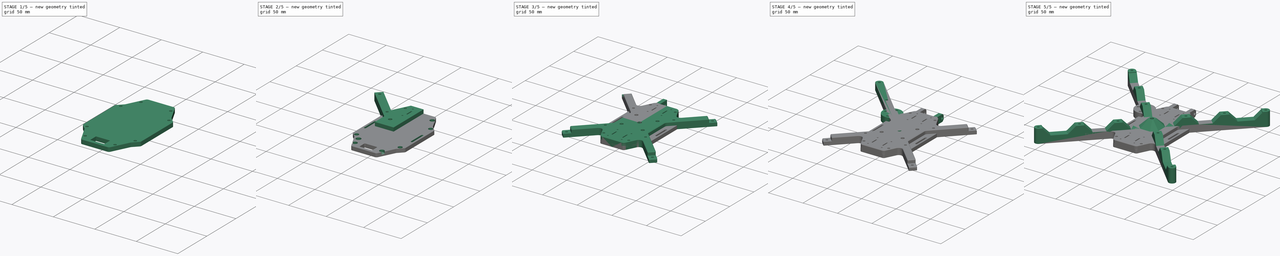
[diagram: build sequence overview — one tinted view per stage of 5, left to right]
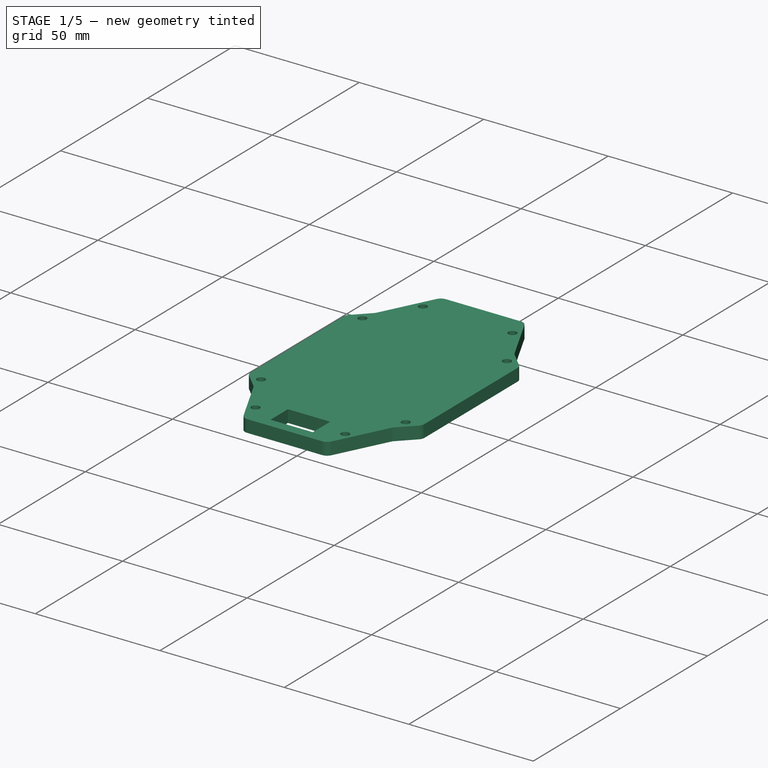
[diagram: stage 1 of 5 — iso view after this stage's code; geometry added in this stage tinted green]
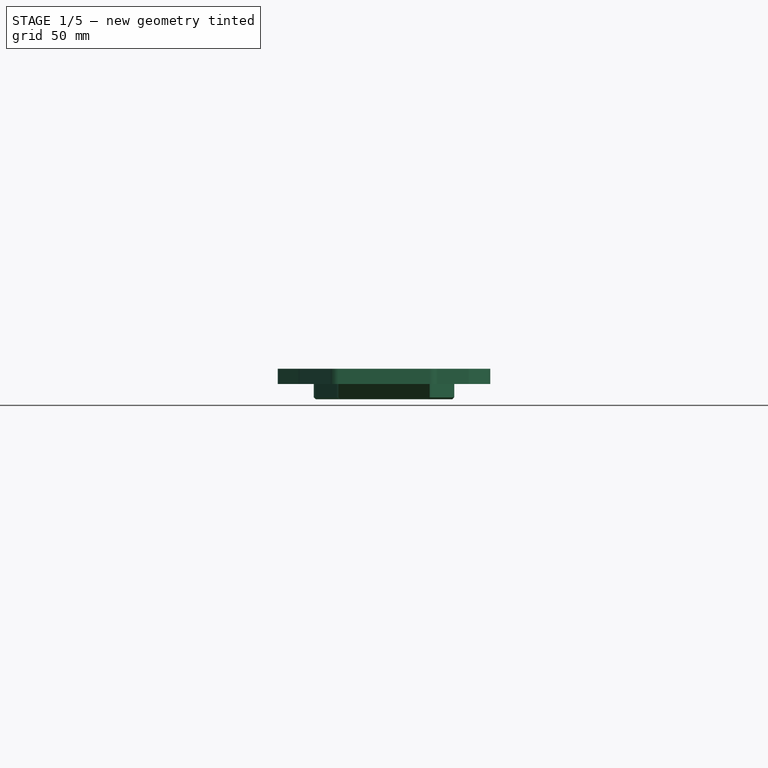
[diagram: stage 1 of 5 — front view after this stage's code; geometry added in this stage tinted green]
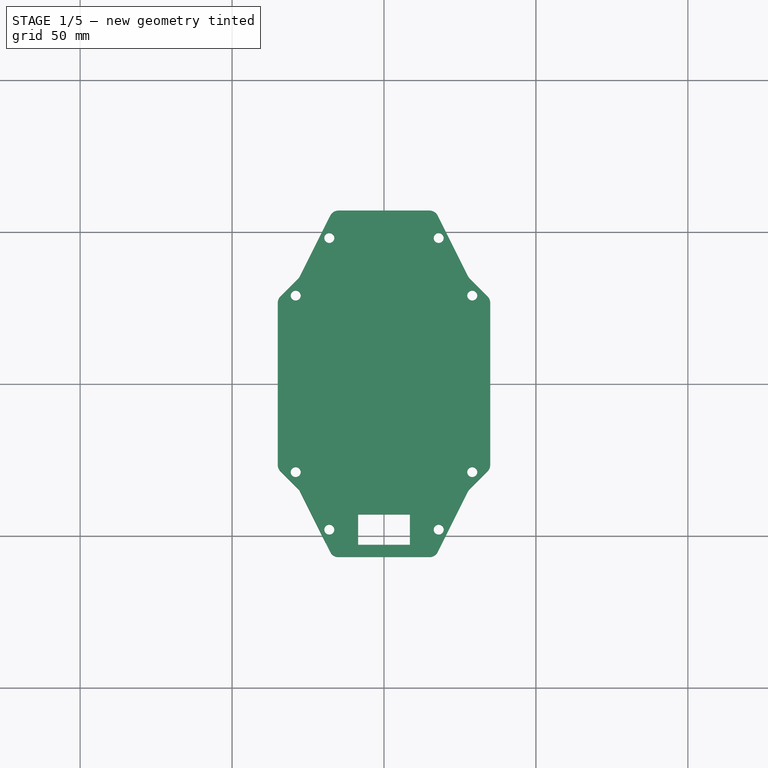
[diagram: stage 1 of 5 — top view after this stage's code; geometry added in this stage tinted green]
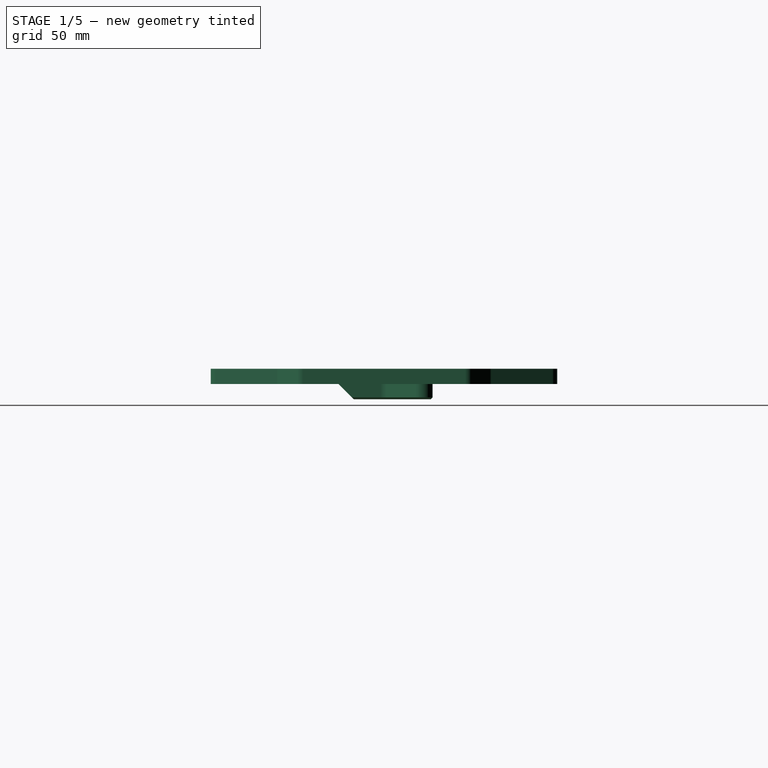
[diagram: stage 1 of 5 — right view after this stage's code; geometry added in this stage tinted green]
FCSTD DOCUMENT  (FreeCAD 1.0R39319 (Git))
Label: seven_inch
License: All rights reserved
LicenseURL: http://en.wikipedia.org/wiki/All_rights_reserved
objects: Sketcher::SketchObject×26, PartDesign::Pocket×14, PartDesign::Fillet×13, PartDesign::Pad×12, PartDesign::Chamfer×11, PartDesign::Mirrored×6, PartDesign::Body×6, PartDesign::MultiTransform×2, PartDesign::PolarPattern×1, App::Part×1
note: 226 computed .brp shape members not serialized (recipe doc carries the construction recipe); baked Part::Feature solids carry a one-line shape summary decoded from their .brp

FEATURE [PartDesign::Body] Body001  label="Arm"
  AllowCompound = false
  Group = -> [Sketch002,Pad001,Sketch003,Pocket001,Sketch004,Pocket002,Fillet004,Fillet005,Chamfer009]
  Origin = -> Origin002
  Placement = pos=(-62,61.9,0.6) rot=(0,0,1;0rad)
  Tip = -> Chamfer009
FEATURE [Sketcher::SketchObject] Sketch019
  ArcFitTolerance = 1e-06
  AttachmentSupport = -> [XY_Plane004]
  FullyConstrained = true
  MakeInternals = false
  MapMode = 5
  expr: Constraints[12] = <<Base>>.Constraints.TopWidthNarrow
  expr: Constraints[13] = <<Base>>.Constraints.TopLengthNarrow
  expr: Constraints[14] = <<Base>>.Constraints.TopWidthWide2
  expr: Constraints[15] = <<Base>>.Constraints.TopWidthWide
  expr: Constraints[16] = <<Base>>.Constraints.TopLengthNarrow2
  expr: Constraints[17] = <<Base>>.Constraints.ScewHoleDiameter
  expr: Constraints[18] = <<Base>>.Constraints.Hole1X
  expr: Constraints[19] = <<Base>>.Constraints.Hole1Y
  expr: Constraints[22] = <<Base>>.Constraints.Hole1Radius
  expr: Constraints[24] = <<Base>>.Constraints.ScewHoleDiameter
  expr: Constraints[2] = <<Base>>.Constraints.TopLengthWide
  sketch-geometry (9):
    g0: LineSegment StartX=0 StartY=0 StartZ=0 EndX=0 EndY=57 EndZ=0
    g1: LineSegment StartX=0 StartY=57 StartZ=0 EndX=-16.8408 EndY=57 EndZ=0
    g2: LineSegment StartX=-16.8408 StartY=57 StartZ=0 EndX=-27.8838 EndY=34.9549 EndZ=0
    g3: LineSegment StartX=-27.8838 StartY=34.9549 StartZ=0 EndX=-34.9549 EndY=27.8838 EndZ=0
    g4: LineSegment StartX=-34.9549 StartY=27.8838 StartZ=0 EndX=-34.9549 EndY=0 EndZ=0
    g5: LineSegment StartX=-34.9549 StartY=0 StartZ=0 EndX=0 EndY=0 EndZ=0
    g6: Circle CenterX=-18 CenterY=47.9876 CenterZ=0 NormalX=0 NormalY=0 NormalZ=1 AngleXU=0 Radius=1.65
    g7: LineSegment [constr] StartX=0 StartY=0 StartZ=0 EndX=-29.05 EndY=29.05 EndZ=0
    g8: Circle CenterX=-29.05 CenterY=29.05 CenterZ=0 NormalX=0 NormalY=0 NormalZ=1 AngleXU=0 Radius=1.65
  constraints (25):
    c: Coincident(g-1,g0)
    c: PointOnObject(g0,g-2)
    c: DistanceY(g0,g0) = 57
    c: Coincident(g0,g1)
    c: Horizontal(g1)
    c: Coincident(g1,g2)
    c: Coincident(g2,g3)
    c: Coincident(g3,g4)
    c: PointOnObject(g4,g-1)
    c: Vertical(g4)
    c: Coincident(g4,g5)
    c: Coincident(g5,g0)
    c: DistanceX(g1,g1) = 16.8408
    c: DistanceY(g0,g2) = 34.9549
    c: DistanceX(g5,g5) = 34.9549
    c: DistanceX(g2,g0) = 27.8838
    c: DistanceY(g0,g3) = 27.8838
    c: Diameter(g6) = 3.3
    c: DistanceX(g6,g0) = 18
    c: DistanceY(g0,g6) = 47.9876
    c: Coincident(g7,g0)
    c: Angle(g0,g7) = 0.785398
    c: Distance(g7) = 41.0829
    c: Coincident(g8,g7)
    c: Diameter(g8) = 3.3
FEATURE [PartDesign::Pad] Pad008  label="Quarter"
  Direction = (0,0,1)
  Length = 5
  Length2 = 10
  Profile = -> Sketch019
  ReferenceAxis = -> Sketch019 [N_Axis]
  Suppressed = false
  Type = 0
FEATURE [PartDesign::Fillet] Fillet010  label="OuterFillet"
  Base = -> Pad008 [Edge11,Edge8,Edge5]
  BaseFeature = -> Pad008
  Radius = 3
  SupportTransform = false
  Suppressed = false
  UseAllEdges = false
FEATURE [PartDesign::Mirrored] Mirrored002
  MirrorPlane = -> Sketch019 [V_Axis]
  Suppressed = false
  TransformMode = 0
FEATURE [PartDesign::Mirrored] Mirrored003
  MirrorPlane = -> Sketch019 [H_Axis]
  Suppressed = false
  TransformMode = 0
FEATURE [PartDesign::MultiTransform] MultiTransform001  label="WholeObject"
  BaseFeature = -> Fillet010
  Originals = -> [Pad008,Fillet010]
  Suppressed = false
  TransformMode = 0
  Transformations = -> [Mirrored002,Mirrored003]
FEATURE [Sketcher::SketchObject] Sketch020
  ArcFitTolerance = 1e-06
  AttachmentSupport = -> [MultiTransform001]
  ExternalGeometry = -> [MultiTransform001]
  FullyConstrained = true
  MakeInternals = false
  MapMode = 5
  Placement = pos=(0,0,5) rot=(0,0,1;0rad)
  sketch-geometry (4):
    g0: LineSegment StartX=-8.5 StartY=-42.9876 StartZ=0 EndX=-8.5 EndY=-52.9876 EndZ=0
    g1: LineSegment StartX=-8.5 StartY=-52.9876 StartZ=0 EndX=8.5 EndY=-52.9876 EndZ=0
    g2: LineSegment StartX=8.5 StartY=-52.9876 StartZ=0 EndX=8.5 EndY=-42.9876 EndZ=0
    g3: LineSegment StartX=8.5 StartY=-42.9876 StartZ=0 EndX=-8.5 EndY=-42.9876 EndZ=0
  constraints (12):
    c: Coincident(g0,g1)
    c: Coincident(g1,g2)
    c: Coincident(g2,g3)
    c: Coincident(g3,g0)
    c: Vertical(g0)
    c: Vertical(g2)
    c: Horizontal(g1)
    c: Horizontal(g3)
    c: DistanceX(g3,g3) = 17
    c: DistanceY(g0,g0) = 10
    c: DistanceX(g0,g-3) = 8.5
    c: DistanceY(g-4,g2) = 5
FEATURE [PartDesign::Pocket] Pocket011  label="Xt60Hole"
  BaseFeature = -> MultiTransform001
  Direction = (0,0,-1)
  Length = 5
  Length2 = 5
  Profile = -> Sketch020
  ReferenceAxis = -> Sketch020 [N_Axis]
  Suppressed = false
  Type = 1
FEATURE [PartDesign::Body] Body003  label="Top"
  AllowCompound = false
  Group = -> [Sketch019,Pad008,Fillet010,MultiTransform001,Mirrored002,Mirrored003,Sketch020,Pocket011,Fillet011,Sketch021,Pocket012,Sketch022,Pocket013,Sketch032,Pocket019,Sketch033,Pad012,Sketch034,Pocket020,Fillet017,Mirrored005,Fillet018]
  Origin = -> Origin004
  Placement = pos=(0,0,35.3) rot=(0,0,1;0rad)
  Tip = -> Fillet018
FEATURE [Sketcher::SketchObject] Sketch035
  ArcFitTolerance = 1e-06
  AttachmentSupport = -> [XY_Plane006]
  FullyConstrained = true
  MakeInternals = false
  MapMode = 5
  expr: Constraints[0] = <<Base>>.Constraints.ScewHoleDiameter
  sketch-geometry (22):
    g0: Circle CenterX=-18 CenterY=10.35 CenterZ=0 NormalX=0 NormalY=0 NormalZ=1 AngleXU=0 Radius=1.65
    g1: LineSegment [constr] StartX=-18 StartY=10.35 StartZ=0 EndX=0 EndY=10.35 EndZ=0
    g2: LineSegment [constr] StartX=-18 StartY=10.35 StartZ=0 EndX=-19.65 EndY=10.35 EndZ=0
    g3: Circle CenterX=18 CenterY=10.35 CenterZ=0 NormalX=0 NormalY=0 NormalZ=1 AngleXU=0 Radius=1.65
    g4: LineSegment StartX=0 StartY=0 StartZ=0 EndX=-5.98092 EndY=0 EndZ=0
    g5: LineSegment StartX=-5.98092 StartY=0 StartZ=0 EndX=-16.4968 EndY=14.4935 EndZ=0
    g6: LineSegment [constr] StartX=-18 StartY=10.35 StartZ=0 EndX=-15.0457 EndY=12.4935 EndZ=0
    g7: GeomPoint [constr] X=-16.6645 Y=11.319 Z=0
    g8: LineSegment [constr] StartX=-18 StartY=10.35 StartZ=0 EndX=-19.4511 EndY=12.35 EndZ=0
    g9: GeomPoint [constr] X=-18.969 Y=11.6855 Z=0
    g10: ArcOfCircle CenterX=-19.4511 CenterY=12.35 CenterZ=0 NormalX=0 NormalY=0 NormalZ=1 AngleXU=0 Radius=3.65 StartAngle=0.627675 EndAngle=3.76927
    g11: LineSegment StartX=-22.4054 StartY=10.2065 StartZ=0 EndX=-15 EndY=0 EndZ=0
    g12: LineSegment StartX=-15 StartY=0 StartZ=0 EndX=-15 EndY=-25 EndZ=0
    g13: LineSegment StartX=-15 StartY=-25 StartZ=0 EndX=0 EndY=-25 EndZ=0
    g14: LineSegment StartX=0 StartY=-25 StartZ=0 EndX=15 EndY=-25 EndZ=0
    g15: LineSegment StartX=0 StartY=0 StartZ=0 EndX=5.98092 EndY=0 EndZ=0
    g16: LineSegment StartX=5.98092 StartY=0 StartZ=0 EndX=16.4968 EndY=14.4935 EndZ=0
    g17: LineSegment StartX=15 StartY=-25 StartZ=0 EndX=15 EndY=0 EndZ=0
    g18: LineSegment StartX=15 StartY=0 StartZ=0 EndX=22.4054 EndY=10.2065 EndZ=0
    g19: ArcOfCircle CenterX=19.4511 CenterY=12.35 CenterZ=0 NormalX=0 NormalY=0 NormalZ=1 AngleXU=0 Radius=3.65 StartAngle=5.6555 EndAngle=8.79711
    g20: LineSegment [constr] StartX=-18 StartY=10.35 StartZ=0 EndX=-18 EndY=12 EndZ=0
    g21: LineSegment [constr] StartX=-19.4511 StartY=12.35 StartZ=0 EndX=-19.4511 EndY=16 EndZ=0
  constraints (60):
    c: Diameter(g0) = 3.3
    c: Coincident(g1,g0)
    c: PointOnObject(g1,g-2)
    c: Horizontal(g1)
    c: DistanceX(g1,g1) = 18
    c: Coincident(g2,g0)
    c: PointOnObject(g2,g0)
    c: Horizontal(g2)
    c: Equal(g3,g0)
    c: Symmetric(g0,g3,g-2)
    c: DistanceY(g-1,g0) = 10.35
    c: Coincident(g4,g-1)
    c: PointOnObject(g4,g-1)
    c: Coincident(g5,g4)
    c: Coincident(g6,g0)
    c: PointOnObject(g6,g5)
    c: Perpendicular(g5,g6)
    c: PointOnObject(g7,g6)
    c: PointOnObject(g7,g0)
    c: Distance(g7,g6) = 2
    c: Coincident(g8,g0)
    c: Parallel(g8,g5)
    c: PointOnObject(g9,g0)
    c: PointOnObject(g9,g8)
    c: Angle(g10) = 3.14159
    c: Coincident(g11,g10)
    c: PointOnObject(g11,g-1)
    c: Parallel(g11,g5)
    c: Coincident(g12,g11)
    c: Vertical(g12)
    c: Coincident(g13,g12)
    c: PointOnObject(g13,g-2)
    c: Horizontal(g13)
    c: Coincident(g14,g13)
    c: Horizontal(g14)
    c: Equal(g13,g14)
    c: DistanceX(g12,g14) = 30
    c: DistanceY(g12,g11) = 25
    c: Coincident(g10,g8)
    c: Tangent(g5,g10) = -1.5708
    c: Coincident(g4,g15)
    c: PointOnObject(g15,g-1)
    c: Coincident(g15,g16)
    c: Coincident(g14,g17)
    c: PointOnObject(g17,g-1)
    c: Vertical(g17)
    c: Coincident(g17,g18)
    c: Symmetric(g16,g5,g-2)
    c: Symmetric(g18,g10,g-2)
    c: Coincident(g19,g16)
    c: Equal(g4,g15)
    c: Coincident(g19,g18)
    c: Equal(g19,g10)
    c: Coincident(g20,g0)
    c: PointOnObject(g20,g0)
    c: Vertical(g20)
    c: Coincident(g21,g8)
    c: PointOnObject(g21,g10)
    c: Vertical(g21)
    c: DistanceY(g20,g21) = 4
FEATURE [PartDesign::Pad] Pad013
  Direction = (0,0,1)
  Length = 5
  Length2 = 10
  Profile = -> Sketch035
  ReferenceAxis = -> Sketch035 [N_Axis]
  Suppressed = false
  Type = 0
FEATURE [Sketcher::SketchObject] Sketch036
  ArcFitTolerance = 1e-06
  AttachmentSupport = -> [Pad013]
  ExternalGeometry = -> [Pad013]
  FullyConstrained = true
  MakeInternals = false
  MapMode = 5
  Placement = pos=(0,0,0) rot=(1,0,0;3.14159rad)
  sketch-geometry (12):
    g0: ArcOfCircle CenterX=-19.4511 CenterY=-12.35 CenterZ=0 NormalX=0 NormalY=0 NormalZ=1 AngleXU=0 Radius=3.65 StartAngle=2.51392 EndAngle=5.65551
    g1: LineSegment StartX=-22.4054 StartY=-10.2065 StartZ=0 EndX=-15 EndY=3.6e-15 EndZ=0
    g2: LineSegment StartX=-15 StartY=3.6e-15 StartZ=0 EndX=-15 EndY=10 EndZ=0
    g3: LineSegment StartX=-15 StartY=10 StartZ=0 EndX=15 EndY=10 EndZ=0
    g4: LineSegment StartX=15 StartY=10 StartZ=0 EndX=15 EndY=0 EndZ=0
    g5: LineSegment StartX=15 StartY=0 StartZ=0 EndX=22.4054 EndY=-10.2065 EndZ=0
    g6: LineSegment StartX=16.4969 StartY=-14.4936 StartZ=0 EndX=5.98092 EndY=3.6e-15 EndZ=0
    g7: LineSegment StartX=5.98092 StartY=3.6e-15 StartZ=0 EndX=-5.98092 EndY=0 EndZ=0
    g8: LineSegment StartX=-5.98092 StartY=0 StartZ=0 EndX=-16.4968 EndY=-14.4935 EndZ=0
    g9: ArcOfCircle CenterX=19.4511 CenterY=-12.35 CenterZ=0 NormalX=0 NormalY=0 NormalZ=1 AngleXU=0 Radius=3.65 StartAngle=3.76928 EndAngle=6.91087
    g10: Circle CenterX=-18 CenterY=-10.35 CenterZ=0 NormalX=0 NormalY=0 NormalZ=1 AngleXU=0 Radius=1.65
    g11: Circle CenterX=18 CenterY=-10.35 CenterZ=0 NormalX=0 NormalY=0 NormalZ=1 AngleXU=0 Radius=1.65
  constraints (28):
    c: Coincident(g0,g-4)
    c: Coincident(g0,g-4)
    c: Tangent(g0,g1) = 1.5708
    c: Coincident(g1,g2)
    c: PointOnObject(g2,g-3)
    c: Vertical(g2)
    c: Coincident(g2,g3)
    c: Horizontal(g3)
    c: Coincident(g3,g4)
    c: Coincident(g4,g-7)
    c: Vertical(g4)
    c: Coincident(g4,g5)
    c: Coincident(g5,g-7)
    c: Coincident(g6,g-6)
    c: Coincident(g6,g7)
    c: Coincident(g7,g-5)
    c: Coincident(g7,g8)
    c: Coincident(g8,g0)
    c: Coincident(g9,g-10)
    c: Coincident(g10,g-9)
    c: Equal(g10,g-9)
    c: Coincident(g11,g-8)
    c: Equal(g11,g-8)
    c: DistanceY(g1,g2) = 10
    c: PointOnObject(g0,g-5)
    c: Coincident(g9,g5)
    c: Coincident(g6,g9)
    c: PointOnObject(g6,g-6)
FEATURE [PartDesign::Pad] Pad014
  BaseFeature = -> Pad013
  Direction = (0,0,-1)
  Length = 5
  Length2 = 10
  Profile = -> Sketch036
  ReferenceAxis = -> Sketch036 [N_Axis]
  Suppressed = false
  Type = 0
FEATURE [PartDesign::Chamfer] Chamfer014
  Angle = 45
  Base = -> Pad014 [Edge66]
  BaseFeature = -> Pad014
  ChamferType = 0
  FlipDirection = false
  Size = 4.99
  Size2 = 1
  SupportTransform = false
  Suppressed = false
  UseAllEdges = false
FEATURE [PartDesign::Chamfer] Chamfer015
  Angle = 45
  Base = -> Chamfer014 [Edge32,Edge3]
  BaseFeature = -> Chamfer014
  ChamferType = 0
  FlipDirection = false
  Size = 8
  Size2 = 1
  SupportTransform = false
  Suppressed = false
  UseAllEdges = false
FEATURE [PartDesign::Fillet] Fillet019
  Base = -> Chamfer015 [Edge78,Edge77,Edge2,Edge13,Edge39,Edge35,Edge6,Edge38]
  BaseFeature = -> Chamfer015
  Radius = 3.64
  SupportTransform = false
  Suppressed = false
  UseAllEdges = false
FEATURE [PartDesign::Chamfer] Chamfer016
  Angle = 45
  Base = -> Fillet019 [Edge15]
  BaseFeature = -> Fillet019
  ChamferType = 0
  FlipDirection = false
  Size = 0.5
  Size2 = 1
  SupportTransform = false
  Suppressed = false
  UseAllEdges = false
FEATURE [PartDesign::Chamfer] Chamfer017
  Angle = 45
  Base = -> Chamfer016 [Edge112,Edge23]
  BaseFeature = -> Chamfer016
  ChamferType = 0
  FlipDirection = false
  Size = 0.6
  Size2 = 1
  SupportTransform = false
  Suppressed = false
  UseAllEdges = false
FEATURE [PartDesign::Body] Body005  label="GPSPlate"
  AllowCompound = false
  Group = -> [Sketch035,Pad013,Sketch036,Pad014,Chamfer014,Chamfer015,Fillet019,Chamfer016,Chamfer017]
  Origin = -> Origin006
  Placement = pos=(0,-58.4,45.6) rot=(0,0,1;0rad)
  Tip = -> Chamfer017
FEATURE [App::Part] Part
  Group = -> [Body,Body001,Body002,Body003,Body004,Body005]
  Origin = -> Origin
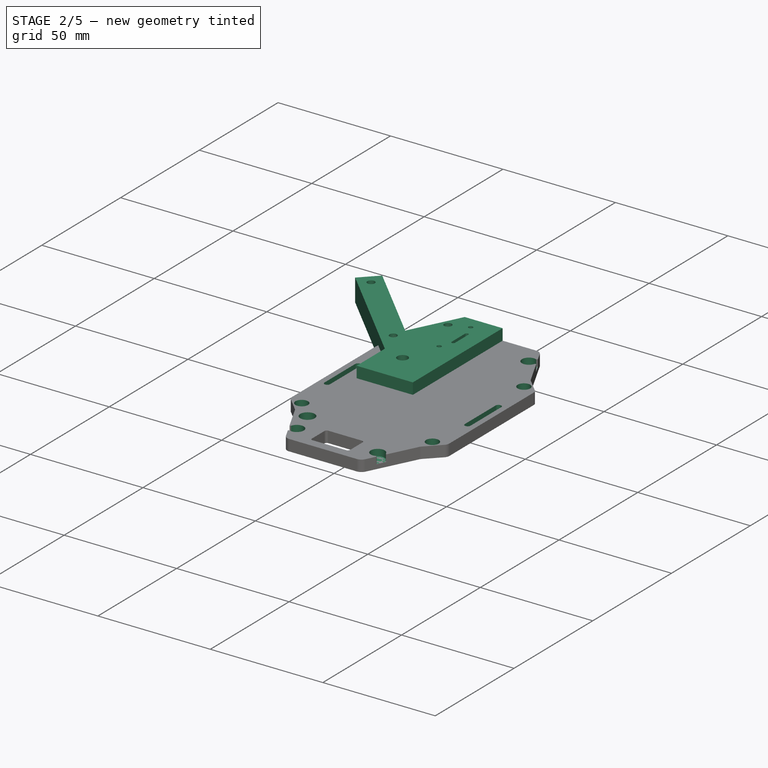
[diagram: stage 2 of 5 — iso view after this stage's code; geometry added in this stage tinted green]
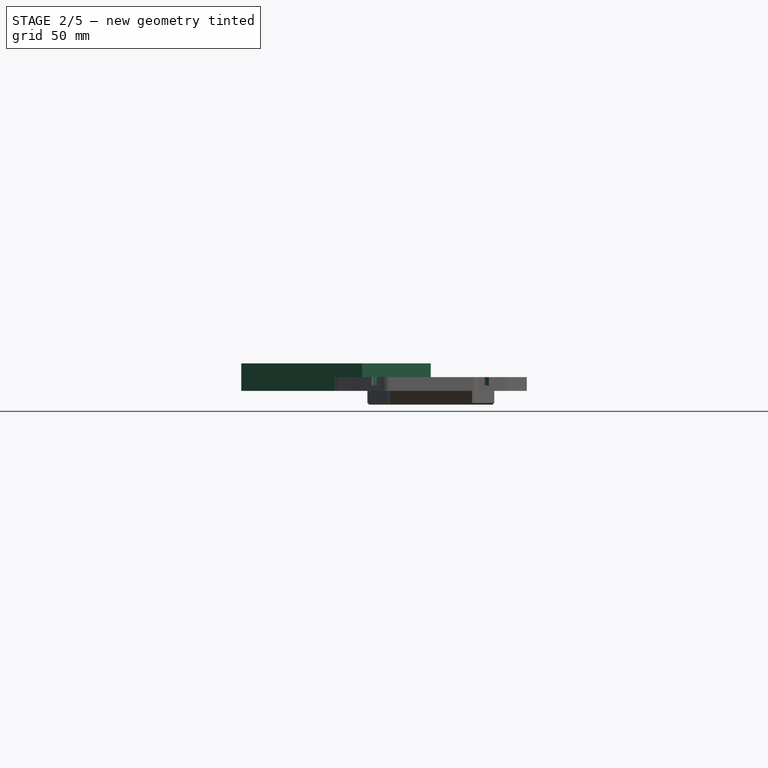
[diagram: stage 2 of 5 — front view after this stage's code; geometry added in this stage tinted green]
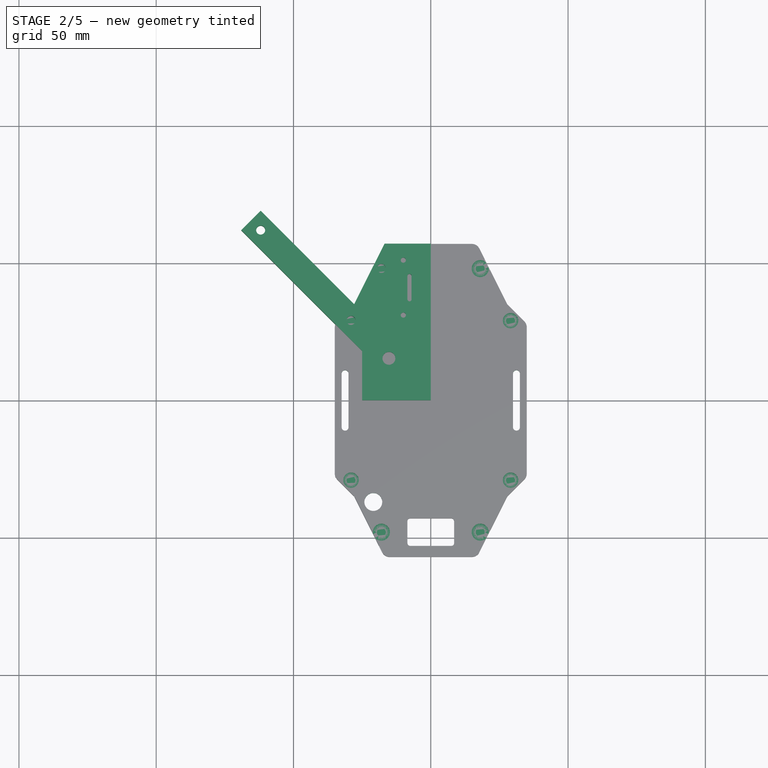
[diagram: stage 2 of 5 — top view after this stage's code; geometry added in this stage tinted green]
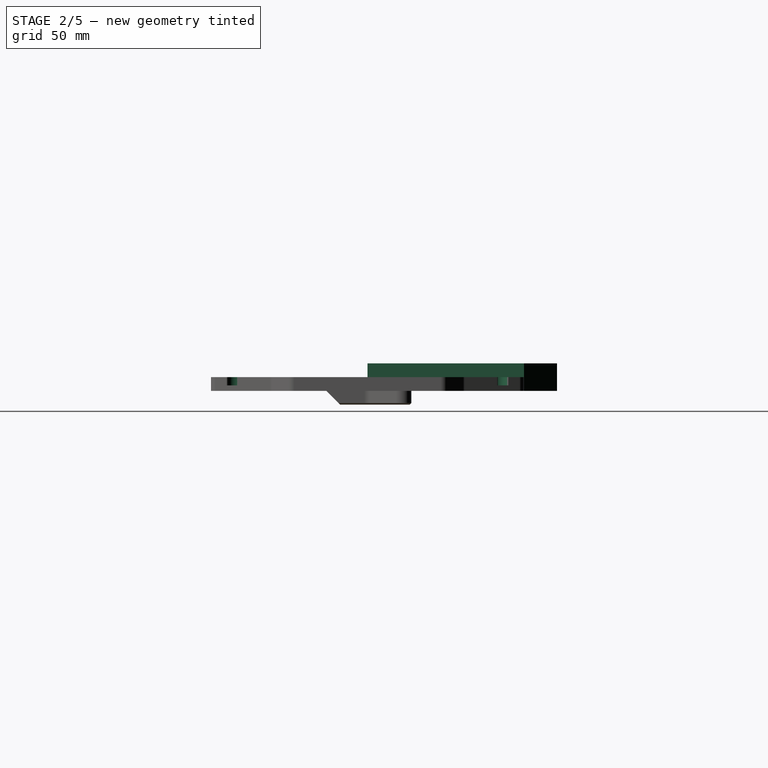
[diagram: stage 2 of 5 — right view after this stage's code; geometry added in this stage tinted green]
FEATURE [Sketcher::SketchObject] Sketch  label="Base"
  ArcFitTolerance = 1e-06
  AttachmentSupport = -> [XY_Plane001]
  FullyConstrained = true
  MakeInternals = false
  MapMode = 5
  expr: Constraints[132] = .Constraints.ScewHoleDiameter
  expr: Constraints[149] = .Constraints.ScewHoleDiameter
  expr: Constraints[153] = .Constraints.ScewHoleDiameter
  expr: Constraints[80] = .Constraints.HeatSetDiameter
  sketch-geometry (87):
    g0: Circle [constr] CenterX=-97.3092 CenterY=97.3092 CenterZ=0 NormalX=0 NormalY=0 NormalZ=1 AngleXU=0 Radius=90
    g1: LineSegment [constr] StartX=-97.3092 StartY=97.3092 StartZ=0 EndX=0 EndY=0 EndZ=0
    g2: ArcOfCircle [constr] CenterX=-97.3092 CenterY=97.3092 CenterZ=0 NormalX=0 NormalY=0 NormalZ=1 AngleXU=0 Radius=13.5 StartAngle=5.87719 EndAngle=11.4016
    g3: Circle [constr] CenterX=-97.3092 CenterY=97.3092 CenterZ=0 NormalX=0 NormalY=0 NormalZ=1 AngleXU=0 Radius=9.5
    g4: LineSegment [constr] StartX=-97.3092 StartY=97.3092 StartZ=0 EndX=-97.3092 EndY=106.809 EndZ=0
    g5: Circle [constr] CenterX=-97.3092 CenterY=106.809 CenterZ=0 NormalX=0 NormalY=0 NormalZ=1 AngleXU=0 Radius=2.8
    g6: LineSegment [constr] StartX=-97.3092 StartY=109.609 StartZ=0 EndX=-97.3092 EndY=110.809 EndZ=0
    g7: LineSegment [constr] StartX=-106.809 StartY=97.3092 StartZ=0 EndX=-97.3092 EndY=97.3092 EndZ=0
    g8: LineSegment [constr] StartX=-97.3092 StartY=97.3092 StartZ=0 EndX=-97.3092 EndY=87.8092 EndZ=0
    g9: LineSegment [constr] StartX=-97.3092 StartY=97.3092 StartZ=0 EndX=-87.8092 EndY=97.3092 EndZ=0
    g10: Circle [constr] CenterX=-106.809 CenterY=97.3092 CenterZ=0 NormalX=0 NormalY=0 NormalZ=1 AngleXU=0 Radius=1.65
    g11: Circle [constr] CenterX=-97.3092 CenterY=87.8092 CenterZ=0 NormalX=0 NormalY=0 NormalZ=1 AngleXU=0 Radius=1.65
    g12: Circle [constr] CenterX=-87.8092 CenterY=97.3092 CenterZ=0 NormalX=0 NormalY=0 NormalZ=1 AngleXU=0 Radius=1.65
    g13: Circle [constr] CenterX=-97.3092 CenterY=106.809 CenterZ=0 NormalX=0 NormalY=0 NormalZ=1 AngleXU=0 Radius=1.65
    g14: Circle [constr] CenterX=-97.3092 CenterY=97.3092 CenterZ=0 NormalX=0 NormalY=0 NormalZ=1 AngleXU=0 Radius=2.35
    g15: LineSegment [constr] StartX=-91.9777 StartY=84.9066 StartZ=0 EndX=-88.4421 EndY=88.4421 EndZ=0
    g16: LineSegment [constr] StartX=-88.4421 StartY=88.4421 StartZ=0 EndX=-84.9066 EndY=91.9777 EndZ=0
    g17: LineSegment StartX=-25 StartY=17.9289 StartZ=0 EndX=-25 EndY=0 EndZ=0
    g18: LineSegment StartX=-25 StartY=0 StartZ=0 EndX=0 EndY=0 EndZ=0
    g19: LineSegment StartX=0 StartY=0 StartZ=0 EndX=0 EndY=57 EndZ=0
    g20: LineSegment [constr] StartX=15.25 StartY=-15.25 StartZ=0 EndX=15.25 EndY=15.25 EndZ=0
    g21: LineSegment [constr] StartX=15.25 StartY=15.25 StartZ=0 EndX=-15.25 EndY=15.25 EndZ=0
    g22: LineSegment [constr] StartX=-15.25 StartY=15.25 StartZ=0 EndX=-15.25 EndY=-15.25 EndZ=0
    g23: LineSegment [constr] StartX=-15.25 StartY=-15.25 StartZ=0 EndX=15.25 EndY=-15.25 EndZ=0
    g24: GeomPoint [constr] X=0 Y=0 Z=0
    g25: Circle CenterX=-15.25 CenterY=15.25 CenterZ=0 NormalX=0 NormalY=0 NormalZ=1 AngleXU=0 Radius=2.35
    g26: LineSegment [constr] StartX=25 StartY=-25 StartZ=0 EndX=25 EndY=25 EndZ=0
    g27: LineSegment [constr] StartX=25 StartY=25 StartZ=0 EndX=-25 EndY=25 EndZ=0
    g28: LineSegment [constr] StartX=-25 StartY=25 StartZ=0 EndX=-25 EndY=-25 EndZ=0
    g29: LineSegment [constr] StartX=-25 StartY=-25 StartZ=0 EndX=25 EndY=-25 EndZ=0
    g30: GeomPoint [constr] X=0 Y=0 Z=0
    g31: LineSegment [constr] StartX=-15 StartY=26 StartZ=0 EndX=15 EndY=26 EndZ=0
    g32: LineSegment [constr] StartX=15 StartY=26 StartZ=0 EndX=15 EndY=56 EndZ=0
    g33: LineSegment [constr] StartX=15 StartY=56 StartZ=0 EndX=-15 EndY=56 EndZ=0
    g34: LineSegment [constr] StartX=-15 StartY=56 StartZ=0 EndX=-15 EndY=26 EndZ=0
    g35: GeomPoint [constr] X=0 Y=41 Z=0
    g36: LineSegment [constr] StartX=-10 StartY=31 StartZ=0 EndX=10 EndY=31 EndZ=0
    g37: LineSegment [constr] StartX=10 StartY=31 StartZ=0 EndX=10 EndY=51 EndZ=0
    g38: LineSegment [constr] StartX=10 StartY=51 StartZ=0 EndX=-10 EndY=51 EndZ=0
    g39: LineSegment [constr] StartX=-10 StartY=51 StartZ=0 EndX=-10 EndY=31 EndZ=0
    g40: GeomPoint [constr] X=0 Y=41 Z=0
    g41: LineSegment StartX=0 StartY=57 StartZ=0 EndX=-16.8408 EndY=57 EndZ=0
    g42: LineSegment [constr] StartX=-9.7 StartY=57 StartZ=0 EndX=-9.7 EndY=64 EndZ=0
    g43: LineSegment [constr] StartX=-9.7 StartY=64 StartZ=0 EndX=-13.7 EndY=64 EndZ=0
    g44: LineSegment [constr] StartX=-13.7 StartY=64 StartZ=0 EndX=-13.7 EndY=57 EndZ=0
    g45: LineSegment [constr] StartX=-13.7 StartY=57 StartZ=0 EndX=-9.7 EndY=57 EndZ=0
    g46: LineSegment [constr] StartX=-27.8838 StartY=34.9549 StartZ=0 EndX=-25 EndY=32.0711 EndZ=0
    g47: LineSegment [constr] StartX=-25 StartY=17.9289 StartZ=0 EndX=-25 EndY=32.0711 EndZ=0
    g48: LineSegment [constr] StartX=-84.9066 StartY=91.9777 StartZ=0 EndX=-61.9539 EndY=69.0249 EndZ=0
    g49: LineSegment [constr] StartX=-91.9777 StartY=84.9066 StartZ=0 EndX=-69.0249 EndY=61.9539 EndZ=0
    g50: Circle CenterX=-29.05 CenterY=29.05 CenterZ=0 NormalX=0 NormalY=0 NormalZ=1 AngleXU=0 Radius=1.65
    g51: LineSegment [constr] StartX=-27.4 StartY=29.05 StartZ=0 EndX=-25 EndY=29.05 EndZ=0
    g52: LineSegment StartX=-69.0249 StartY=61.9539 StartZ=0 EndX=-61.9539 EndY=69.0249 EndZ=0
    g53: GeomPoint [constr] X=-65.4894 Y=65.4894 Z=0
    g54: LineSegment [constr] StartX=-69.0249 StartY=61.9539 StartZ=0 EndX=-61.9539 EndY=61.9539 EndZ=0
    g55: LineSegment [constr] StartX=-61.9539 StartY=61.9539 StartZ=0 EndX=-61.9539 EndY=69.0249 EndZ=0
    g56: Circle CenterX=-61.9539 CenterY=61.9539 CenterZ=0 NormalX=0 NormalY=0 NormalZ=1 AngleXU=0 Radius=1.65
    g57: Circle [constr] CenterX=-18 CenterY=47.9876 CenterZ=0 NormalX=0 NormalY=0 NormalZ=1 AngleXU=0 Radius=3
    g58: Circle CenterX=-18 CenterY=47.9876 CenterZ=0 NormalX=0 NormalY=0 NormalZ=1 AngleXU=0 Radius=1.65
    g59: Circle CenterX=-10 CenterY=51 CenterZ=0 NormalX=0 NormalY=0 NormalZ=1 AngleXU=0 Radius=0.95
    g60: Circle CenterX=-10 CenterY=31 CenterZ=0 NormalX=0 NormalY=0 NormalZ=1 AngleXU=0 Radius=0.95
    g61: Circle [constr] CenterX=10 CenterY=31 CenterZ=0 NormalX=0 NormalY=0 NormalZ=1 AngleXU=0 Radius=0.95
    g62: Circle [constr] CenterX=10 CenterY=51 CenterZ=0 NormalX=0 NormalY=0 NormalZ=1 AngleXU=0 Radius=0.95
    g63: LineSegment StartX=-61.9539 StartY=69.0249 StartZ=0 EndX=-29.05 EndY=36.1211 EndZ=0
    g64: LineSegment StartX=-29.05 StartY=36.1211 StartZ=0 EndX=-27.8838 EndY=34.9549 EndZ=0
    g65: LineSegment [constr] StartX=-29.05 StartY=29.05 StartZ=0 EndX=-29.05 EndY=36.1211 EndZ=0
    g66: LineSegment StartX=-69.0249 StartY=61.9539 StartZ=0 EndX=-36.1211 EndY=29.05 EndZ=0
    g67: LineSegment StartX=-36.1211 StartY=29.05 StartZ=0 EndX=-25 EndY=17.9289 EndZ=0
    g68: LineSegment [constr] StartX=-29.05 StartY=29.05 StartZ=0 EndX=-36.1211 EndY=29.05 EndZ=0
    g69: LineSegment [constr] StartX=-36.1211 StartY=29.05 StartZ=0 EndX=-29.05 EndY=36.1211 EndZ=0
    g70: LineSegment StartX=-16.8408 StartY=57 StartZ=0 EndX=-25.5428 EndY=39.6282 EndZ=0
    g71: LineSegment StartX=-25.5428 StartY=39.6282 StartZ=0 EndX=-27.8838 EndY=34.9549 EndZ=0
    g72: LineSegment [constr] StartX=-29.05 StartY=36.1211 StartZ=0 EndX=-25.5428 EndY=39.6282 EndZ=0
    g73: GeomPoint [constr] X=-32.5855 Y=32.5855 Z=0
    g74: LineSegment [constr] StartX=-7 StartY=45.26 StartZ=0 EndX=0 EndY=41 EndZ=0
    g75: LineSegment [constr] StartX=-7 StartY=36.74 StartZ=0 EndX=0 EndY=41 EndZ=0
    g76: LineSegment StartX=-8.5 StartY=45.26 StartZ=0 EndX=-8.5 EndY=36.74 EndZ=0
    g77: LineSegment StartX=-7.76 StartY=36 StartZ=0 EndX=-7.74 EndY=36 EndZ=0
    g78: LineSegment StartX=-7 StartY=36.74 StartZ=0 EndX=-7 EndY=45.26 EndZ=0
    g79: LineSegment StartX=-7.74 StartY=46 StartZ=0 EndX=-7.76 EndY=46 EndZ=0
    g80: ArcOfCircle CenterX=-7.76 CenterY=45.26 CenterZ=0 NormalX=0 NormalY=0 NormalZ=1 AngleXU=0 Radius=0.74 StartAngle=1.5708 EndAngle=3.14159
    g81: ArcOfCircle CenterX=-7.76 CenterY=36.74 CenterZ=0 NormalX=0 NormalY=0 NormalZ=1 AngleXU=0 Radius=0.74 StartAngle=3.14159 EndAngle=4.71239
    g82: ArcOfCircle CenterX=-7.74 CenterY=36.74 CenterZ=0 NormalX=0 NormalY=0 NormalZ=1 AngleXU=0 Radius=0.74 StartAngle=4.71239 EndAngle=6.28319
    g83: ArcOfCircle CenterX=-7.74 CenterY=45.26 CenterZ=0 NormalX=0 NormalY=0 NormalZ=1 AngleXU=0 Radius=0.74 StartAngle=-4.4e-15 EndAngle=1.5708
    g84: GeomPoint [constr] X=-8.5 Y=46 Z=0
    g85: GeomPoint [constr] X=-7 Y=36 Z=0
    g86: LineSegment [constr] StartX=-27.8838 StartY=34.9549 StartZ=0 EndX=-34.9549 EndY=27.8838 EndZ=0
  constraints (231):
    c: Diameter(g0) = 180
    c: PointOnObject(g19,g-2)
    c: Coincident(g1,g0)
    c: Coincident(g1,g-1)
    c: Angle(g-2,g1) = 0.785398
    c: PointOnObject(g70,g0)
    c: Coincident(g2,g0)
    c: Coincident(g3,g0)
    c: Diameter(g3) = 19
    c: Coincident(g4,g0)
    c: PointOnObject(g4,g3)
    c: Vertical(g4)
    c: Coincident(g5,g4)
    c: Diameter(g5) = 5.6  'ScrewCapDiameter'
    c: PointOnObject(g6,g5)
    c: PointOnObject(g6,g2)
    c: Vertical(g6)
    c: Perpendicular(g5,g6)
    c: DistanceY(g6,g6) = 1.2
    c: PointOnObject(g7,g3)
    c: Coincident(g7,g0)
    c: Horizontal(g7)
    c: Coincident(g7,g8)
    c: PointOnObject(g8,g3)
    c: Vertical(g8)
    c: Coincident(g9,g0)
    c: PointOnObject(g9,g3)
    c: Horizontal(g9)
    c: Coincident(g10,g7)
    c: Coincident(g11,g8)
    c: Coincident(g12,g9)
    c: Coincident(g13,g4)
    c: Coincident(g14,g0)
    c: Equal(g10,g13)
    c: Equal(g10,g12)
    c: Equal(g10,g11)
    c: Diameter(g10) = 3.3  'ScewHoleDiameter'
    c: Diameter(g14) = 4.7  'HeatSetDiameter'
    c: Coincident(g49,g2)
    c: Coincident(g48,g2)
    c: Coincident(g15,g2)
    c: PointOnObject(g15,g1)
    c: Coincident(g16,g15)
    c: Coincident(g16,g2)
    c: Perpendicular(g1,g16)
    c: Perpendicular(g1,g15)
    c: Distance(g2,g2) = 10
    c: Coincident(g64,g71)
    c: Coincident(g17,g67)
    c: PointOnObject(g17,g-1)
    c: Vertical(g17)
    c: Coincident(g18,g17)
    c: Coincident(g18,g1)
    c: Coincident(g19,g1)
    c: DistanceX(g18,g18) = 25
    c: Coincident(g20,g21)
    c: Coincident(g21,g22)
    c: Coincident(g22,g23)
    c: Coincident(g23,g20)
    c: Vertical(g20)
    c: Vertical(g22)
    c: Horizontal(g21)
    c: Horizontal(g23)
    c: Symmetric(g22,g20,g24)
    c: Coincident(g24,g1)
    c: PointOnObject(g21,g1)
    c: DistanceY(g20,g20) = 30.5
    c: Coincident(g25,g21)
    c: Coincident(g26,g27)
    c: Coincident(g27,g28)
    c: Coincident(g28,g29)
    c: Coincident(g29,g26)
    c: Vertical(g26)
    c: Vertical(g28)
    c: Horizontal(g27)
    c: Horizontal(g29)
    c: Symmetric(g28,g26,g30)
    c: Coincident(g30,g1)
    c: PointOnObject(g27,g1)
    c: DistanceY(g26,g26) = 50
    c: Diameter(g25) = 4.7
    c: Coincident(g31,g32)
    c: Coincident(g32,g33)
    c: Coincident(g33,g34)
    c: Coincident(g34,g31)
    c: Horizontal(g31)
    c: Horizontal(g33)
    c: Vertical(g32)
    c: Vertical(g34)
    c: Symmetric(g33,g31,g35)
    c: PointOnObject(g35,g19)
    c: Equal(g33,g32)
    c: DistanceY(g32,g32) = 30
    c: DistanceY(g26,g31) = 1
    c: Coincident(g36,g37)
    c: Coincident(g37,g38)
    c: Coincident(g38,g39)
    c: Coincident(g39,g36)
    c: Horizontal(g36)
    c: Horizontal(g38)
    c: Vertical(g37)
    c: Vertical(g39)
    c: Symmetric(g38,g36,g40)
    c: Coincident(g40,g35)
    c: Equal(g39,g38)
    c: DistanceY(g37,g37) = 20
    c: Coincident(g41,g19)
    c: Coincident(g41,g70)
    c: Horizontal(g41)
    c: Coincident(g42,g43)
    c: Coincident(g43,g44)
    c: Coincident(g44,g45)
    c: Coincident(g45,g42)
    c: Vertical(g42)
    c: Vertical(g44)
    c: Horizontal(g43)
    c: Horizontal(g45)
    c: PointOnObject(g44,g41)
    c: DistanceY(g42,g42) = 7
    c: DistanceX(g43,g43) = 4
    c: DistanceX(g42,g19) = 9.7
    c: PointOnObject(g43,g0)
    c: DistanceY(g33,g44) = 1
    c: Coincident(g46,g64)
    c: Coincident(g47,g67)
    c: Coincident(g47,g46)
    c: Vertical(g47)
    c: Coincident(g48,g63)
    c: Parallel(g1,g48)
    c: Coincident(g49,g66)
    c: Parallel(g49,g1)
    c: PointOnObject(g50,g1)
    c: Diameter(g50) = 3.3
    c: PointOnObject(g51,g50)
    c: PointOnObject(g51,g47)
    c: Horizontal(g51)
    c: Perpendicular(g50,g51)
    c: DistanceX(g51,g51) = 2.4
    c: Coincident(g52,g48)
    c: Coincident(g49,g52)
    c: Distance(g1) = 137.616  'Wheelbase'
    c: PointOnObject(g53,g52)
    c: PointOnObject(g53,g1)
    c: Coincident(g54,g49)
    c: Horizontal(g54)
    c: Coincident(g55,g54)
    c: Coincident(g55,g48)
    c: Vertical(g55)
    c: Coincident(g56,g54)
    c: Diameter(g56) = 3.3
    c: Diameter(g57) = 6
    c: Tangent(g57,g34)
    c: Coincident(g58,g57)
    c: Diameter(g58) = 3.3
    c: Coincident(g59,g38)
    c: Coincident(g60,g36)
    c: Coincident(g61,g36)
    c: Coincident(g62,g37)
    c: Equal(g59,g60)
    c: Equal(g59,g61)
    c: Equal(g59,g62)
    c: Diameter(g59) = 1.9  'M2HoleDiameter'
    c: Distance(g50,g1) = 41.0829  'Hole1Radius'
    c: Distance(g54,g1) = 87.616  'Hole2Radius'
    c: Coincident(g63,g64)
    c: Parallel(g1,g63)
    c: Parallel(g1,g64)
    c: Parallel(g63,g46)
    c: Perpendicular(g63,g52)
    c: Coincident(g65,g50)
    c: Coincident(g65,g63)
    c: Vertical(g65)
    c: Coincident(g66,g67)
    c: Parallel(g66,g1)
    c: Parallel(g67,g1)
    c: Coincident(g68,g50)
    c: Coincident(g68,g66)
    c: Horizontal(g68)
    c: Coincident(g69,g66)
    c: Coincident(g69,g63)
    c: Coincident(g70,g71)
    c: Tangent(g70,g0)
    c: Tangent(g71,g0)
    c: Tangent(g57,g70)
    c: Coincident(g72,g63)
    c: Coincident(g72,g70)
    c: Parallel(g72,g69)
    c: PointOnObject(g73,g69)
    c: PointOnObject(g73,g1)
    c: Distance(g0,g69) = 91.5331
    c: Distance(g54,g50) = 46.5331  'ArmHoleDistance'
    c: Distance(g54,g0) = 50  'ArmLength'
    c: Coincident(g74,g35)
    c: Coincident(g75,g35)
    c: Equal(g74,g75)
    c: Tangent(g76,g80) = -1.5708
    c: Tangent(g76,g81) = -1.5708
    c: Tangent(g77,g81) = -1.5708
    c: Tangent(g77,g82) = -1.5708
    c: Tangent(g78,g82) = -1.5708
    c: Tangent(g78,g83) = -1.5708
    c: Tangent(g79,g83) = -1.5708
    c: Tangent(g79,g80) = -1.5708
    c: Vertical(g76)
    c: Vertical(g78)
    c: Horizontal(g77)
    c: Horizontal(g79)
    c: Equal(g80,g81)
    c: Equal(g81,g82)
    c: Equal(g82,g83)
    c: PointOnObject(g84,g76)
    c: PointOnObject(g84,g79)
    c: PointOnObject(g85,g77)
    c: PointOnObject(g85,g78)
    c: DistanceX(g76,g78) = 1.5
    c: Radius(g83) = 0.74
    c: Coincident(g74,g78)
    c: Coincident(g75,g78)
    c: DistanceX(g74,g35) = 7
    c: DistanceY(g77,g79) = 10
    c: DistanceY(g1,g19) = 57  'TopLengthWide'
    c: DistanceY(g17,g46) = 34.9549  'TopLengthNarrow'
    c: DistanceX(g46,g1) = 27.8838  'TopWidthWide'
    c: DistanceX(g41,g19) = 16.8408  'TopWidthNarrow'
    c: Coincident(g86,g46)
    c: PointOnObject(g86,g67)
    c: Perpendicular(g67,g86)
    c: DistanceX(g86,g1) = 34.9549  'TopWidthWide2'
    c: DistanceY(g1,g86) = 27.8838  'TopLengthNarrow2'
    c: DistanceX(g57,g19) = 18  'Hole1X'
    c: DistanceY(g1,g57) = 47.9876  'Hole1Y'
FEATURE [PartDesign::Pad] Pad  label="BasePad"
  Direction = (0,0,1)
  Length = 10
  Length2 = 10
  Profile = -> Sketch
  ReferenceAxis = -> Sketch [N_Axis]
  Suppressed = false
  Type = 0
FEATURE [PartDesign::Fillet] Fillet011  label="Xt60HoleFillet"
  Base = -> Pocket011 [Edge119,Edge118,Edge117,Edge121]
  BaseFeature = -> Pocket011
  Radius = 1
  SupportTransform = false
  Suppressed = false
  UseAllEdges = false
FEATURE [Sketcher::SketchObject] Sketch021
  ArcFitTolerance = 1e-06
  AttachmentSupport = -> [Fillet011]
  ExternalGeometry = -> [Fillet011]
  FullyConstrained = true
  MakeInternals = false
  MapMode = 5
  Placement = pos=(0,0,5) rot=(0,0,1;0rad)
  sketch-geometry (11):
    g0: LineSegment [constr] StartX=-29.05 StartY=-29.05 StartZ=0 EndX=-20.9294 EndY=-37.0043 EndZ=0
    g1: LineSegment [constr] StartX=-18 StartY=-47.9876 StartZ=0 EndX=-20.9294 EndY=-37.0043 EndZ=0
    g2: Circle CenterX=-20.9294 CenterY=-37.0043 CenterZ=0 NormalX=0 NormalY=0 NormalZ=1 AngleXU=0 Radius=3.25
    g3: LineSegment [constr] StartX=-18.3239 StartY=-33.0516 StartZ=0 EndX=-23.0498 EndY=-32.7714 EndZ=0
    g4: LineSegment [constr] StartX=-23.0498 StartY=-32.7714 StartZ=0 EndX=-25.6554 EndY=-36.7242 EndZ=0
    g5: LineSegment [constr] StartX=-25.6554 StartY=-36.7242 StartZ=0 EndX=-23.535 EndY=-40.9571 EndZ=0
    g6: LineSegment [constr] StartX=-23.535 StartY=-40.9571 StartZ=0 EndX=-18.8091 EndY=-41.2372 EndZ=0
    g7: LineSegment [constr] StartX=-18.8091 StartY=-41.2372 StartZ=0 EndX=-16.2035 EndY=-37.2844 EndZ=0
    g8: LineSegment [constr] StartX=-16.2035 StartY=-37.2844 StartZ=0 EndX=-18.3239 EndY=-33.0516 EndZ=0
    g9: Circle [constr] CenterX=-20.9294 CenterY=-37.0043 CenterZ=0 NormalX=0 NormalY=0 NormalZ=1 AngleXU=0 Radius=4.73427
    g10: LineSegment [constr] StartX=-25.6554 StartY=-36.7242 StartZ=0 EndX=-26.7283 EndY=-37.2616 EndZ=0
  constraints (26):
    c: Coincident(g0,g-3)
    c: Coincident(g1,g-4)
    c: Coincident(g1,g0)
    c: Equal(g0,g1)
    c: Coincident(g2,g0)
    c: Diameter(g2) = 6.5
    c: Coincident(g3,g4)
    c: Coincident(g4,g5)
    c: Coincident(g5,g6)
    c: Coincident(g6,g7)
    c: Coincident(g7,g8)
    c: Coincident(g8,g3)
    c: Equal(g3, g4-g8) x5
    c: PointOnObject(g3,g9)
    c: PointOnObject(g4,g9)
    c: PointOnObject(g5,g9)
    c: PointOnObject(g6,g9)
    c: PointOnObject(g7,g9)
    c: PointOnObject(g8,g9)
    c: Coincident(g9,g0)
    c: Parallel(g5,g-5)
    c: Distance(g4,g3) = 8.2
    c: Coincident(g10,g4)
    c: PointOnObject(g10,g-5)
    c: Perpendicular(g-5,g10)
    c: Distance(g10) = 1.2
FEATURE [PartDesign::Pocket] Pocket012  label="SMAHole"
  BaseFeature = -> Fillet011
  Direction = (0,0,-1)
  Length = 5
  Length2 = 5
  Profile = -> Sketch021
  ReferenceAxis = -> Sketch021 [N_Axis]
  Suppressed = false
  Type = 1
FEATURE [Sketcher::SketchObject] Sketch022
  ArcFitTolerance = 1e-06
  AttachmentSupport = -> [Pocket012]
  ExternalGeometry = -> [Pocket012]
  FullyConstrained = true
  MakeInternals = false
  MapMode = 5
  Placement = pos=(0,0,0) rot=(1,0,0;3.14159rad)
  sketch-geometry (7):
    g0: LineSegment StartX=-23.535 StartY=40.9571 StartZ=0 EndX=-25.6554 EndY=36.7242 EndZ=0
    g1: LineSegment StartX=-25.6554 StartY=36.7242 StartZ=0 EndX=-23.0498 EndY=32.7714 EndZ=0
    g2: LineSegment StartX=-23.0498 StartY=32.7714 StartZ=0 EndX=-18.3239 EndY=33.0516 EndZ=0
    g3: LineSegment StartX=-18.3239 StartY=33.0516 StartZ=0 EndX=-16.2035 EndY=37.2844 EndZ=0
    g4: LineSegment StartX=-16.2035 StartY=37.2844 StartZ=0 EndX=-18.8091 EndY=41.2372 EndZ=0
    g5: LineSegment StartX=-18.8091 StartY=41.2372 StartZ=0 EndX=-23.535 EndY=40.9571 EndZ=0
    g6: Circle [constr] CenterX=-20.9294 CenterY=37.0043 CenterZ=0 NormalX=0 NormalY=0 NormalZ=1 AngleXU=0 Radius=4.73427
  constraints (16):
    c: Coincident(g0,g1)
    c: Coincident(g1,g2)
    c: Coincident(g2,g3)
    c: Coincident(g3,g4)
    c: Coincident(g4,g5)
    c: Coincident(g5,g0)
    c: Equal(g0, g1-g5) x5
    c: PointOnObject(g0,g6)
    c: PointOnObject(g1,g6)
    c: PointOnObject(g2,g6)
    c: PointOnObject(g3,g6)
    c: PointOnObject(g4,g6)
    c: PointOnObject(g5,g6)
    c: Coincident(g6,g-3)
    c: Distance(g0,g3) = 8.2
    c: Parallel(g0,g-4)
FEATURE [PartDesign::Pocket] Pocket013  label="SmaNutHole"
  BaseFeature = -> Pocket012
  Direction = (0,0,1)
  Length = 2
  Length2 = 5
  Profile = -> Sketch022
  ReferenceAxis = -> Sketch022 [N_Axis]
  Suppressed = false
  Type = 0
FEATURE [PartDesign::Body] Body  label="Center"
  AllowCompound = false
  Group = -> [Sketch,Pad,Sketch001,Pocket,Chamfer005,MultiTransform,Mirrored,Mirrored001,Sketch005,Pocket003,Sketch006,Pocket004,Fillet002,Fillet009,Chamfer008,Sketch028,Pad010,Fillet014,Sketch029,Pocket017,Sketch030,Pocket018,Chamfer013,Fillet015,Mirrored004]
  Origin = -> Origin001
  Tip = -> Mirrored004
FEATURE [Sketcher::SketchObject] Sketch031
  ArcFitTolerance = 1e-06
  AttachmentSupport = -> [XY_Plane005]
  FullyConstrained = true
  MakeInternals = false
  MapMode = 5
  sketch-geometry (3):
    g0: Circle CenterX=0 CenterY=0 CenterZ=0 NormalX=0 NormalY=0 NormalZ=1 AngleXU=0 Radius=2.7
    g1: Circle CenterX=0 CenterY=0 CenterZ=0 NormalX=0 NormalY=0 NormalZ=1 AngleXU=0 Radius=1.1
    g2: LineSegment [constr] StartX=1.1 StartY=0 StartZ=0 EndX=2.7 EndY=0 EndZ=0
  constraints (8):
    c: Coincident(g0,g-1)
    c: Coincident(g1,g0)
    c: Diameter(g1) = 2.2
    c: PointOnObject(g2,g1)
    c: PointOnObject(g2,g0)
    c: Horizontal(g2)
    c: Perpendicular(g1,g2)
    c: DistanceX(g2,g2) = 1.6
FEATURE [PartDesign::Pad] Pad011
  Direction = (0,0,1)
  Length = 2.6
  Length2 = 10
  Profile = -> Sketch031
  ReferenceAxis = -> Sketch031 [N_Axis]
  Suppressed = false
  Type = 0
FEATURE [PartDesign::Body] Body004  label="CameraAttachment"
  AllowCompound = false
  Group = -> [Sketch031,Pad011]
  Origin = -> Origin005
  Placement = pos=(-9.7,67,5) rot=(0,1,0;1.5708rad)
  Tip = -> Pad011
FEATURE [Sketcher::SketchObject] Sketch032
  ArcFitTolerance = 1e-06
  AttachmentSupport = -> [Pocket013]
  ExternalGeometry = -> [Pocket013]
  FullyConstrained = true
  MakeInternals = false
  MapMode = 5
  Placement = pos=(0,0,5) rot=(0,0,1;0rad)
  sketch-geometry (8):
    g0: Circle CenterX=29.05 CenterY=-29.05 CenterZ=0 NormalX=0 NormalY=0 NormalZ=1 AngleXU=0 Radius=2.8
    g1: Circle CenterX=18 CenterY=-47.9876 CenterZ=0 NormalX=0 NormalY=0 NormalZ=1 AngleXU=0 Radius=3.1
    g2: Circle CenterX=-18 CenterY=-47.9876 CenterZ=0 NormalX=0 NormalY=0 NormalZ=1 AngleXU=0 Radius=3.1
    g3: Circle CenterX=-29.05 CenterY=-29.05 CenterZ=0 NormalX=0 NormalY=0 NormalZ=1 AngleXU=0 Radius=2.8
    g4: Circle CenterX=-18 CenterY=47.9876 CenterZ=0 NormalX=0 NormalY=0 NormalZ=1 AngleXU=0 Radius=3.1
    g5: Circle CenterX=18 CenterY=47.9876 CenterZ=0 NormalX=0 NormalY=0 NormalZ=1 AngleXU=0 Radius=3.1
    g6: Circle CenterX=29.05 CenterY=29.05 CenterZ=0 NormalX=0 NormalY=0 NormalZ=1 AngleXU=0 Radius=2.8
    g7: Circle CenterX=-29.05 CenterY=29.05 CenterZ=0 NormalX=0 NormalY=0 NormalZ=1 AngleXU=0 Radius=2.8
  constraints (16):
    c: Coincident(g0,g-12)
    c: Diameter(g0) = 5.6
    c: Coincident(g1,g-11)
    c: Coincident(g2,g-10)
    c: Coincident(g3,g-9)
    c: Coincident(g4,g-4)
    c: Coincident(g5,g-8)
    c: Coincident(g6,g-7)
    c: Coincident(g7,g-3)
    c: Equal(g0,g3)
    c: Equal(g3,g7)
    c: Equal(g7,g6)
    c: Equal(g4,g5)
    c: Equal(g5,g2)
    c: Equal(g2,g1)
    c: Diameter(g5) = 6.2
FEATURE [PartDesign::Pocket] Pocket019  label="ScrewCapHoles"
  BaseFeature = -> Pocket013
  Direction = (0,0,-1)
  Length = 3
  Length2 = 5
  Profile = -> Sketch032
  ReferenceAxis = -> Sketch032 [N_Axis]
  Suppressed = false
  Type = 0
FEATURE [Sketcher::SketchObject] Sketch033
  ArcFitTolerance = 1e-06
  AttachmentSupport = -> [Pocket019]
  FullyConstrained = true
  MakeInternals = false
  MapMode = 5
  Placement = pos=(0,0,2) rot=(0,0,1;0rad)
  sketch-geometry (8):
    g0: Circle CenterX=-29.05 CenterY=29.05 CenterZ=0 NormalX=0 NormalY=0 NormalZ=1 AngleXU=0 Radius=1.75
    g1: Circle CenterX=-18 CenterY=47.9876 CenterZ=0 NormalX=0 NormalY=0 NormalZ=1 AngleXU=0 Radius=1.75
    g2: Circle CenterX=18 CenterY=47.9876 CenterZ=0 NormalX=0 NormalY=0 NormalZ=1 AngleXU=0 Radius=1.75
    g3: Circle CenterX=29.05 CenterY=29.05 CenterZ=0 NormalX=0 NormalY=0 NormalZ=1 AngleXU=0 Radius=1.75
    g4: Circle CenterX=29.05 CenterY=-29.05 CenterZ=0 NormalX=0 NormalY=0 NormalZ=1 AngleXU=0 Radius=1.75
    g5: Circle CenterX=18 CenterY=-47.9876 CenterZ=0 NormalX=0 NormalY=0 NormalZ=1 AngleXU=0 Radius=1.75
    g6: Circle CenterX=-18 CenterY=-47.9876 CenterZ=0 NormalX=0 NormalY=0 NormalZ=1 AngleXU=0 Radius=1.75
    g7: Circle CenterX=-29.05 CenterY=-29.05 CenterZ=0 NormalX=0 NormalY=0 NormalZ=1 AngleXU=0 Radius=1.75
  constraints (16):
    c: Coincident(g0,g-3)
    c: Coincident(g1,g-4)
    c: Coincident(g2,g-5)
    c: Coincident(g3,g-6)
    c: Coincident(g4,g-11)
    c: Coincident(g5,g-9)
    c: Coincident(g6,g-8)
    c: Coincident(g7,g-7)
    c: Equal(g7,g6)
    c: Equal(g6,g5)
    c: Equal(g5,g4)
    c: Equal(g4,g3)
    c: Equal(g3,g2)
    c: Equal(g2,g1)
    c: Equal(g1,g0)
    c: Diameter(g0) = 3.5
FEATURE [PartDesign::Pad] Pad012  label="ScrewCapSacrificials"
  BaseFeature = -> Pocket019
  Direction = (0,0,1)
  Length = 0.2
  Length2 = 10
  Profile = -> Sketch033
  ReferenceAxis = -> Sketch033 [N_Axis]
  Reversed = true
  Suppressed = false
  Type = 0
FEATURE [Sketcher::SketchObject] Sketch034
  ArcFitTolerance = 1e-06
  AttachmentSupport = -> [Pad012]
  ExternalGeometry = -> [Pad012]
  FullyConstrained = true
  MakeInternals = false
  MapMode = 5
  Placement = pos=(0,0,5) rot=(0,0,1;0rad)
  sketch-geometry (5):
    g0: LineSegment StartX=-32.4549 StartY=0 StartZ=0 EndX=-32.4549 EndY=11 EndZ=0
    g1: LineSegment StartX=-32.4549 StartY=11 StartZ=0 EndX=-29.9549 EndY=11 EndZ=0
    g2: LineSegment StartX=-29.9549 StartY=11 StartZ=0 EndX=-29.9549 EndY=-11 EndZ=0
    g3: LineSegment StartX=-29.9549 StartY=-11 StartZ=0 EndX=-32.4549 EndY=-11 EndZ=0
    g4: LineSegment StartX=-32.4549 StartY=-11 StartZ=0 EndX=-32.4549 EndY=0 EndZ=0
  constraints (15):
    c: PointOnObject(g0,g-1)
    c: Vertical(g0)
    c: Coincident(g0,g1)
    c: Horizontal(g1)
    c: Coincident(g1,g2)
    c: Vertical(g2)
    c: Coincident(g2,g3)
    c: Horizontal(g3)
    c: Coincident(g3,g4)
    c: Coincident(g4,g0)
    c: Vertical(g4)
    c: Equal(g0,g4)
    c: DistanceY(g2,g2) = 22
    c: DistanceX(g3,g3) = 2.5
    c: DistanceX(g-3,g0) = 2.5
FEATURE [PartDesign::Pocket] Pocket020  label="TiePoint"
  BaseFeature = -> Pad012
  Direction = (0,0,-1)
  Length = 5
  Length2 = 5
  Profile = -> Sketch034
  ReferenceAxis = -> Sketch034 [N_Axis]
  Suppressed = false
  Type = 1
FEATURE [PartDesign::Fillet] Fillet017  label="TiePointFillet"
  Base = -> Pocket020 [Edge168,Edge71,Edge73,Edge70]
  BaseFeature = -> Pocket020
  Radius = 1.2
  SupportTransform = false
  Suppressed = false
  UseAllEdges = false
FEATURE [PartDesign::Mirrored] Mirrored005  label="TiePoints"
  BaseFeature = -> Fillet017
  MirrorPlane = -> Sketch034 [V_Axis]
  Originals = -> [Pocket020,Fillet017]
  Suppressed = false
  TransformMode = 0
FEATURE [PartDesign::Fillet] Fillet018  label="ScrewCapFillet"
  Base = -> Mirrored005 [Edge219,Edge217,Edge277,Edge279,Edge112,Edge110,Edge180,Edge182]
  BaseFeature = -> Mirrored005
  Radius = 0.4
  SupportTransform = false
  Suppressed = false
  UseAllEdges = false
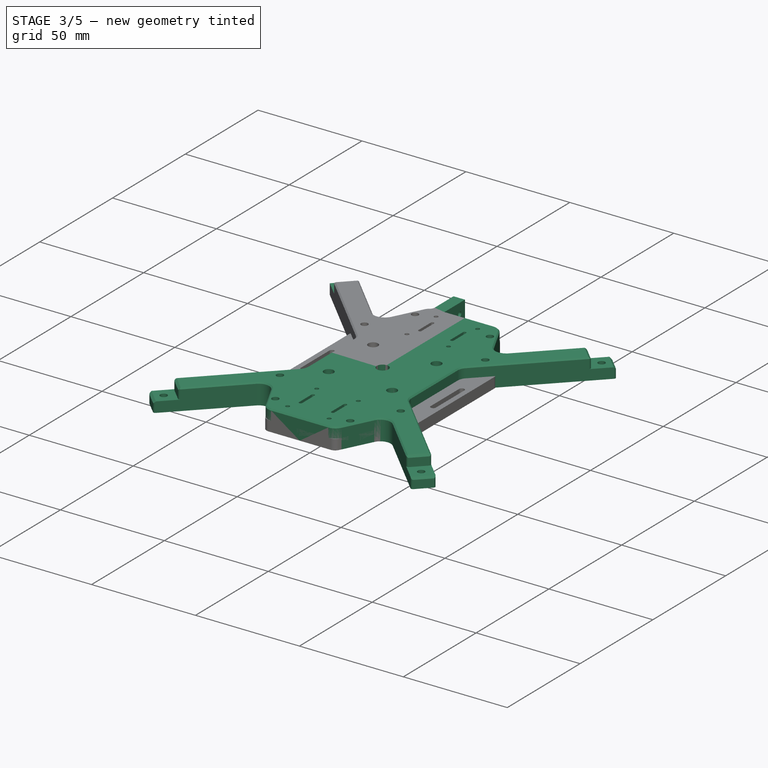
[diagram: stage 3 of 5 — iso view after this stage's code; geometry added in this stage tinted green]
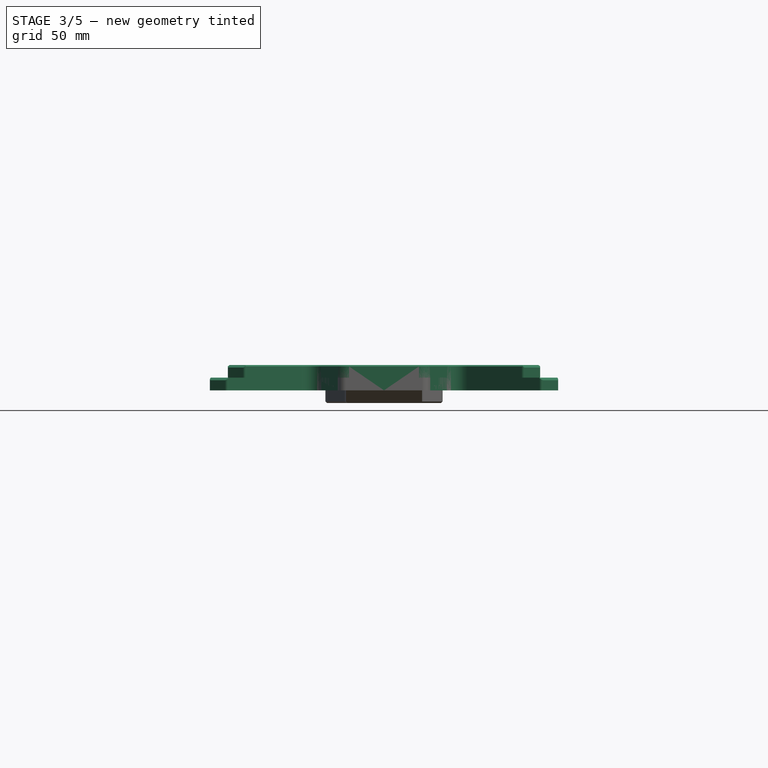
[diagram: stage 3 of 5 — front view after this stage's code; geometry added in this stage tinted green]
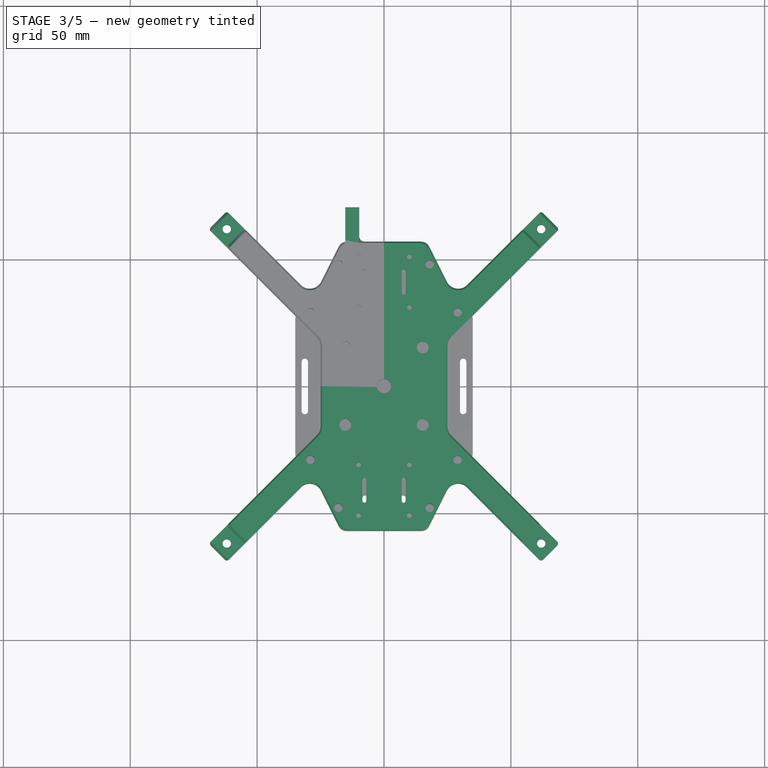
[diagram: stage 3 of 5 — top view after this stage's code; geometry added in this stage tinted green]
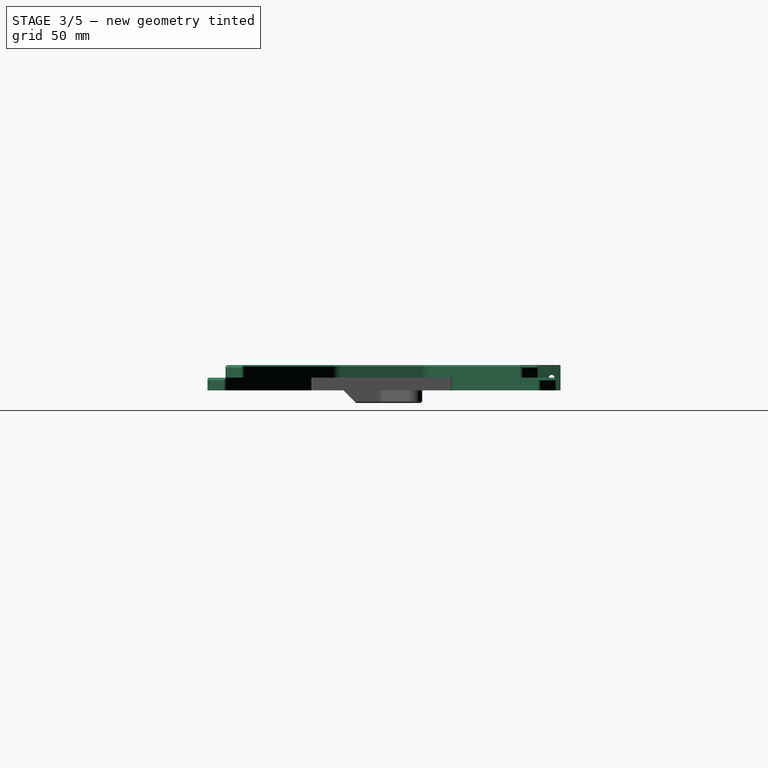
[diagram: stage 3 of 5 — right view after this stage's code; geometry added in this stage tinted green]
FEATURE [Sketcher::SketchObject] Sketch001
  ArcFitTolerance = 1e-06
  AttachmentSupport = -> [Pad]
  ExternalGeometry = -> [Pad]
  FullyConstrained = true
  MakeInternals = false
  MapMode = 5
  Placement = pos=(0,0,10) rot=(0,0,1;0rad)
  expr: Constraints[11] = <<Base>>.Constraints.ScewHoleDiameter
  sketch-geometry (5):
    g0: LineSegment StartX=-69.0249 StartY=61.9539 StartZ=0 EndX=-61.9539 EndY=69.0249 EndZ=0
    g1: LineSegment StartX=-61.9539 StartY=69.0249 StartZ=0 EndX=-54.8828 EndY=61.9539 EndZ=0
    g2: LineSegment StartX=-54.8828 StartY=61.9539 StartZ=0 EndX=-61.9539 EndY=54.8828 EndZ=0
    g3: LineSegment StartX=-61.9539 StartY=54.8828 StartZ=0 EndX=-69.0249 EndY=61.9539 EndZ=0
    g4: Circle CenterX=-61.9539 CenterY=61.9539 CenterZ=0 NormalX=0 NormalY=0 NormalZ=1 AngleXU=0 Radius=1.65
  constraints (12):
    c: Coincident(g-3,g0)
    c: Coincident(g0,g-3)
    c: Coincident(g0,g1)
    c: Coincident(g1,g2)
    c: Coincident(g2,g3)
    c: Coincident(g3,g0)
    c: Perpendicular(g3,g-3)
    c: Perpendicular(g2,g1)
    c: Perpendicular(g-3,g1)
    c: Distance(g3) = 10
    c: Coincident(g4,g-4)
    c: Diameter(g4) = 3.3
FEATURE [PartDesign::Pocket] Pocket  label="ArmAttachPocket"
  BaseFeature = -> Pad
  Direction = (0,0,-1)
  Length = 5
  Length2 = 5
  Profile = -> Sketch001
  ReferenceAxis = -> Sketch001 [N_Axis]
  Suppressed = false
  Type = 0
FEATURE [PartDesign::Body] Body002  label="Legs"
  AllowCompound = false
  Group = -> [Sketch007,Pad002,Sketch014,Pad005,Chamfer,Chamfer003,Fillet,Sketch015,Pocket009,Sketch016,Pad006,PolarPattern001,Fillet008,Sketch017,Pad007,Chamfer004,Sketch018,Pocket010]
  Origin = -> Origin003
  Placement = pos=(0,0,-20.3) rot=(0,0,1;0rad)
  Tip = -> Pocket010
FEATURE [PartDesign::Chamfer] Chamfer005  label="ArmAttachChamfer"
  Angle = 45
  Base = -> Pocket [Edge33,Edge57]
  BaseFeature = -> Pocket
  ChamferType = 0
  FlipDirection = false
  Size = 1
  Size2 = 1
  SupportTransform = false
  Suppressed = false
  UseAllEdges = false
FEATURE [PartDesign::MultiTransform] MultiTransform
  BaseFeature = -> Chamfer005
  Originals = -> [Pad,Pocket]
  Suppressed = false
  TransformMode = 1
  Transformations = -> [Mirrored,Mirrored001]
FEATURE [Sketcher::SketchObject] Sketch005
  ArcFitTolerance = 1e-06
  AttachmentSupport = -> [MultiTransform]
  FullyConstrained = true
  MakeInternals = false
  MapMode = 5
  Placement = pos=(0,0,10) rot=(0,0,1;0rad)
  expr: Constraints[1] = <<Base>>.Constraints.ScewHoleDiameter
  sketch-geometry (1):
    g0: Circle CenterX=0 CenterY=0 CenterZ=0 NormalX=0 NormalY=0 NormalZ=1 AngleXU=0 Radius=1.65
  constraints (2):
    c: Coincident(g0,g-1)
    c: Diameter(g0) = 3.3
FEATURE [PartDesign::Pocket] Pocket003  label="CenterScrewHole"
  BaseFeature = -> MultiTransform
  Direction = (0,0,-1)
  Length = 5
  Length2 = 5
  Profile = -> Sketch005
  ReferenceAxis = -> Sketch005 [N_Axis]
  Suppressed = false
  Type = 1
FEATURE [Sketcher::SketchObject] Sketch006
  ArcFitTolerance = 1e-06
  AttachmentSupport = -> [Pocket003]
  FullyConstrained = true
  MakeInternals = false
  MapMode = 5
  Placement = pos=(0,0,10) rot=(0,0,1;0rad)
  expr: Constraints[1] = <<Base>>.Constraints.ScrewCapDiameter
  sketch-geometry (1):
    g0: Circle CenterX=0 CenterY=0 CenterZ=0 NormalX=0 NormalY=0 NormalZ=1 AngleXU=0 Radius=2.8
  constraints (2):
    c: Coincident(g0,g-1)
    c: Diameter(g0) = 5.6
FEATURE [PartDesign::Pocket] Pocket004  label="CenterScrewCap"
  BaseFeature = -> Pocket003
  Direction = (0,0,-1)
  Length = 5
  Length2 = 5
  Profile = -> Sketch006
  ReferenceAxis = -> Sketch006 [N_Axis]
  Suppressed = false
  Type = 0
FEATURE [PartDesign::Fillet] Fillet002  label="5mmFillet"
  Base = -> Pocket004 [Edge193,Edge72,Edge71,Edge35,Edge256,Edge253,Edge254,Edge316,Edge315,Edge317,Edge224,Edge201,Edge70,Edge252,Edge314,Edge200]
  BaseFeature = -> Pocket004
  Radius = 5
  SupportTransform = false
  Suppressed = false
  UseAllEdges = false
FEATURE [PartDesign::Fillet] Fillet009  label="ArmAttachFillet"
  Base = -> Fillet002 [Edge227,Edge238,Edge41,Edge228,Edge241,Edge31,Edge44,Edge30,Edge160,Edge163,Edge150,Edge149,Edge296,Edge307,Edge310,Edge297]
  BaseFeature = -> Fillet002
  Radius = 1
  SupportTransform = false
  Suppressed = false
  UseAllEdges = false
FEATURE [PartDesign::Chamfer] Chamfer008  label="CenterPrintabilityChamfer"
  Angle = 45
  Base = -> Fillet009 [Edge168,Edge170,Edge322,Edge200]
  BaseFeature = -> Fillet009
  ChamferType = 0
  FlipDirection = false
  Size = 0.6
  Size2 = 1
  SupportTransform = false
  Suppressed = false
  UseAllEdges = false
FEATURE [Sketcher::SketchObject] Sketch028
  ArcFitTolerance = 1e-06
  AttachmentSupport = -> [Chamfer008]
  ExternalGeometry = -> [Chamfer008]
  FullyConstrained = true
  MakeInternals = false
  MapMode = 5
  Placement = pos=(0,0,10) rot=(0,0,1;0rad)
  sketch-geometry (5):
    g0: ArcOfCircle CenterX=-17.5619 CenterY=57.5266 CenterZ=0 NormalX=0 NormalY=0 NormalZ=1 AngleXU=0 Radius=2.31194 StartAngle=5.31581 EndAngle=6.28319
    g1: LineSegment StartX=-15.25 StartY=57.5266 StartZ=0 EndX=-15.25 EndY=70.5 EndZ=0
    g2: LineSegment StartX=-15.25 StartY=70.5 StartZ=0 EndX=-9.75 EndY=70.5 EndZ=0
    g3: LineSegment StartX=-9.75 StartY=70.5 StartZ=0 EndX=-9.75 EndY=55.623 EndZ=0
    g4: LineSegment StartX=-9.75 StartY=55.623 StartZ=0 EndX=-16.25 EndY=55.623 EndZ=0
  constraints (14):
    c: Tangent(g0,g1) = -1.5708
    c: Vertical(g1)
    c: Coincident(g1,g2)
    c: Horizontal(g2)
    c: Coincident(g2,g3)
    c: Vertical(g3)
    c: Coincident(g3,g4)
    c: Coincident(g4,g0)
    c: Horizontal(g4)
    c: DistanceX(g3,g-4) = 9.75
    c: DistanceX(g2,g2) = 5.5
    c: DistanceY(g-3,g2) = 13.5
    c: Tangent(g0,g-6) = 1.5708
    c: DistanceX(g4,g4) = 6.5
FEATURE [PartDesign::Pad] Pad010  label="CameraArm"
  BaseFeature = -> Chamfer008
  Direction = (0,0,1)
  Length = 10
  Length2 = 10
  Profile = -> Sketch028
  ReferenceAxis = -> Sketch028 [N_Axis]
  Reversed = true
  Suppressed = false
  Type = 0
FEATURE [PartDesign::Fillet] Fillet014  label="CameraArmFillet"
  Base = -> Pad010 [Edge93]
  BaseFeature = -> Pad010
  Radius = 2
  SupportTransform = false
  Suppressed = false
  UseAllEdges = false
FEATURE [Sketcher::SketchObject] Sketch029
  ArcFitTolerance = 1e-06
  AttachmentSupport = -> [Fillet014]
  ExternalGeometry = -> [Fillet014]
  FullyConstrained = true
  MakeInternals = false
  MapMode = 5
  Placement = pos=(-15.25,0,0) rot=(0.57735,-0.57735,-0.57735;2.0944rad)
  sketch-geometry (3):
    g0: Circle CenterX=-67 CenterY=5 CenterZ=0 NormalX=0 NormalY=0 NormalZ=1 AngleXU=0 Radius=1.1
    g1: LineSegment [constr] StartX=-70.5 StartY=10 StartZ=0 EndX=-67 EndY=5 EndZ=0
    g2: LineSegment [constr] StartX=-67 StartY=5 StartZ=0 EndX=-70.5 EndY=0 EndZ=0
  constraints (7):
    c: Coincident(g-4,g1)
    c: Coincident(g1,g0)
    c: Coincident(g1,g2)
    c: Coincident(g2,g-3)
    c: Equal(g2,g1)
    c: Diameter(g0) = 2.2
    c: DistanceX(g0,g-6) = 10
FEATURE [PartDesign::Pocket] Pocket017  label="CameraScrewHole"
  BaseFeature = -> Fillet014
  Direction = (1,0,0)
  Length = 15
  Length2 = 5
  Profile = -> Sketch029
  ReferenceAxis = -> Sketch029 [N_Axis]
  Suppressed = false
  Type = 0
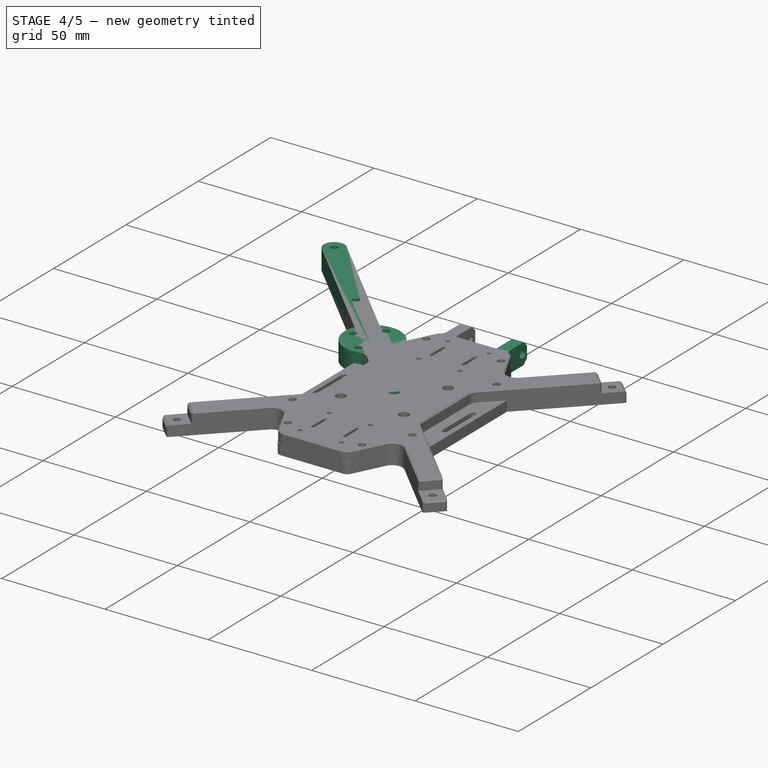
[diagram: stage 4 of 5 — iso view after this stage's code; geometry added in this stage tinted green]
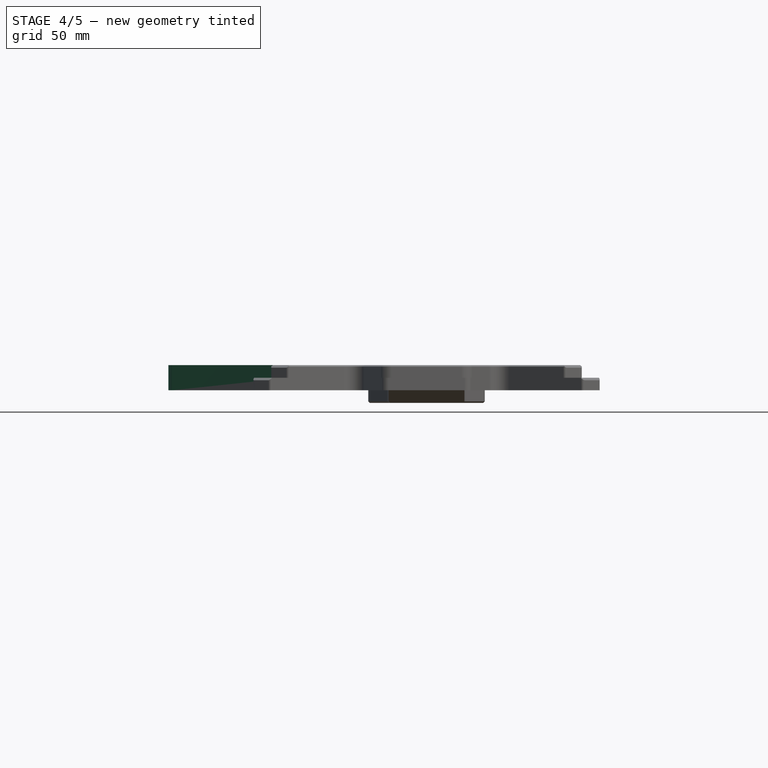
[diagram: stage 4 of 5 — front view after this stage's code; geometry added in this stage tinted green]
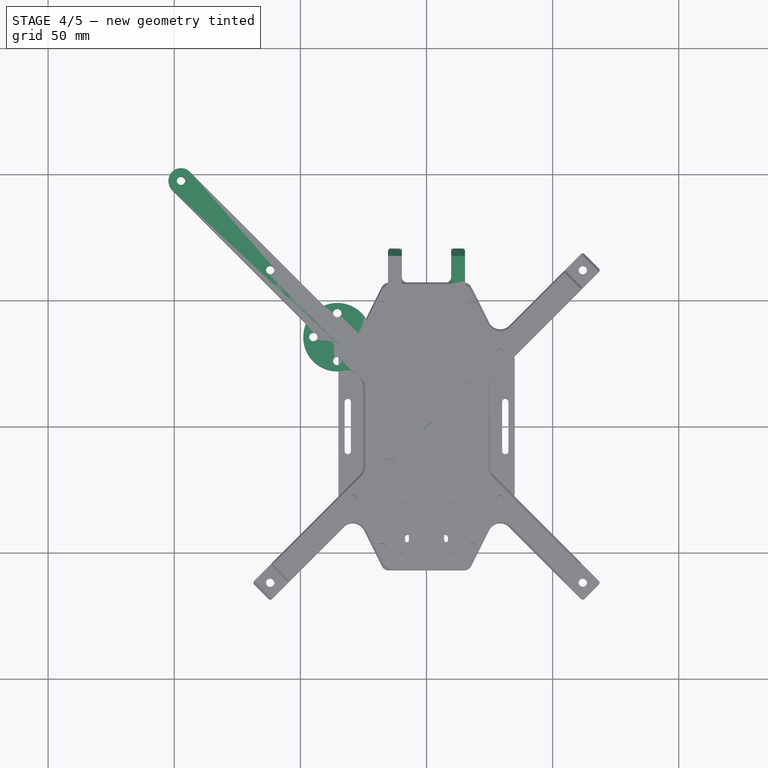
[diagram: stage 4 of 5 — top view after this stage's code; geometry added in this stage tinted green]
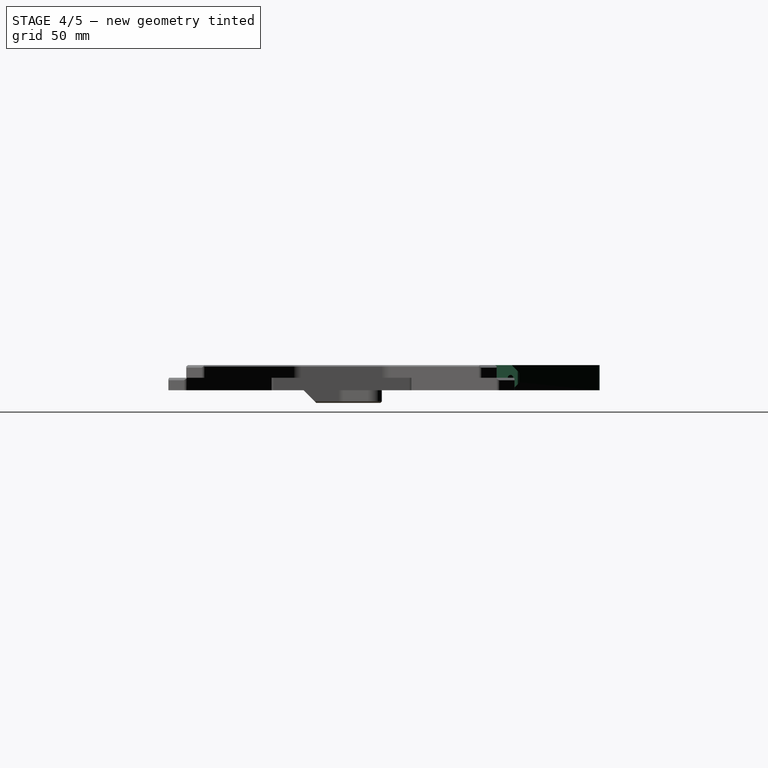
[diagram: stage 4 of 5 — right view after this stage's code; geometry added in this stage tinted green]
FEATURE [Sketcher::SketchObject] Sketch002
  ArcFitTolerance = 1e-06
  AttachmentSupport = -> [XY_Plane002]
  FullyConstrained = true
  MakeInternals = false
  MapMode = 5
  expr: Constraints[35] = <<Base>>.Constraints.HeatSetDiameter
  expr: Constraints[60] = <<Base>>.Constraints.ScewHoleDiameter
  expr: Constraints[62] = <<Base>>.Constraints.HeatSetDiameter
  expr: Constraints[63] = <<Base>>.Constraints.ArmLength
  sketch-geometry (25):
    g0: LineSegment [constr] StartX=-7.07107 StartY=0 StartZ=0 EndX=0 EndY=7.07107 EndZ=0
    g1: LineSegment StartX=0 StartY=7.07107 StartZ=0 EndX=-22.9527 EndY=30.0238 EndZ=0
    g2: LineSegment StartX=-7.07107 StartY=0 StartZ=0 EndX=-30.0238 EndY=22.9527 EndZ=0
    g3: ArcOfCircle CenterX=-35.3553 CenterY=35.3553 CenterZ=0 NormalX=0 NormalY=0 NormalZ=1 AngleXU=0 Radius=13.5 StartAngle=5.87719 EndAngle=11.4016
    g4: LineSegment [constr] StartX=-30.0238 StartY=22.9527 StartZ=0 EndX=-26.4883 EndY=26.4883 EndZ=0
    g5: LineSegment [constr] StartX=-22.9527 StartY=30.0238 StartZ=0 EndX=-26.4883 EndY=26.4883 EndZ=0
    g6: LineSegment [constr] StartX=-26.4883 StartY=26.4883 StartZ=0 EndX=-35.3553 EndY=35.3553 EndZ=0
    g7: Circle [constr] CenterX=-35.3553 CenterY=35.3553 CenterZ=0 NormalX=0 NormalY=0 NormalZ=1 AngleXU=0 Radius=9.5
    g8: Circle [constr] CenterX=-35.3553 CenterY=44.8553 CenterZ=0 NormalX=0 NormalY=0 NormalZ=1 AngleXU=0 Radius=2.8
    g9: LineSegment [constr] StartX=-35.3553 StartY=35.3553 StartZ=0 EndX=-35.3553 EndY=44.8553 EndZ=0
    g10: LineSegment [constr] StartX=-35.3553 StartY=44.8553 StartZ=0 EndX=-35.3553 EndY=47.6553 EndZ=0
    g11: LineSegment [constr] StartX=-35.3553 StartY=47.6553 StartZ=0 EndX=-35.3553 EndY=48.8553 EndZ=0
    g12: LineSegment [constr] StartX=-26.4883 StartY=26.4883 StartZ=0 EndX=-3.53553 EndY=3.53553 EndZ=0
    g13: Circle CenterX=0 CenterY=0 CenterZ=0 NormalX=0 NormalY=0 NormalZ=1 AngleXU=0 Radius=2.35
    g14: LineSegment StartX=-7.07107 StartY=0 StartZ=0 EndX=3.6e-15 EndY=-7.07107 EndZ=0
    g15: LineSegment StartX=3.8e-15 StartY=-7.07107 StartZ=0 EndX=7.07107 EndY=3.6e-15 EndZ=0
    g16: LineSegment StartX=7.07107 StartY=3e-15 StartZ=0 EndX=0 EndY=7.07107 EndZ=0
    g17: LineSegment [constr] StartX=-44.8553 StartY=35.3553 StartZ=0 EndX=-35.3553 EndY=35.3553 EndZ=0
    g18: LineSegment [constr] StartX=-35.3553 StartY=35.3553 StartZ=0 EndX=-25.8553 EndY=35.3553 EndZ=0
    g19: LineSegment [constr] StartX=-35.3553 StartY=35.3553 StartZ=0 EndX=-35.3553 EndY=25.8553 EndZ=0
    g20: Circle CenterX=-44.8553 CenterY=35.3553 CenterZ=0 NormalX=0 NormalY=0 NormalZ=1 AngleXU=0 Radius=1.65
    g21: Circle CenterX=-25.8553 CenterY=35.3553 CenterZ=0 NormalX=0 NormalY=0 NormalZ=1 AngleXU=0 Radius=1.65
    g22: Circle CenterX=-35.3553 CenterY=25.8553 CenterZ=0 NormalX=0 NormalY=0 NormalZ=1 AngleXU=0 Radius=1.65
    g23: Circle CenterX=-35.3553 CenterY=44.8553 CenterZ=0 NormalX=0 NormalY=0 NormalZ=1 AngleXU=0 Radius=1.65
    g24: Circle CenterX=-35.3553 CenterY=35.3553 CenterZ=0 NormalX=0 NormalY=0 NormalZ=1 AngleXU=0 Radius=2.35
  constraints (64):
    c: PointOnObject(g0,g-1)
    c: PointOnObject(g0,g-2)
    c: Coincident(g0,g1)
    c: Coincident(g2,g0)
    c: Angle(g1,g-2) = 2.35619
    c: Parallel(g2,g1)
    c: Coincident(g3,g1)
    c: Coincident(g3,g2)
    c: Perpendicular(g1,g0)
    c: Coincident(g4,g2)
    c: Coincident(g5,g1)
    c: Coincident(g5,g4)
    c: Perpendicular(g5,g1)
    c: Perpendicular(g2,g4)
    c: Equal(g4,g5)
    c: Coincident(g6,g4)
    c: Coincident(g6,g3)
    c: Distance(g2,g1) = 10
    c: Coincident(g7,g3)
    c: Diameter(g7) = 19
    c: PointOnObject(g8,g7)
    c: Coincident(g9,g3)
    c: Coincident(g9,g8)
    c: Vertical(g9)
    c: Diameter(g8) = 5.6
    c: Coincident(g10,g8)
    c: PointOnObject(g10,g8)
    c: Vertical(g10)
    c: Coincident(g11,g10)
    c: PointOnObject(g11,g3)
    c: Vertical(g11)
    c: DistanceY(g11,g11) = 1.2
    c: Coincident(g12,g4)
    c: Symmetric(g0,g0,g12)
    c: Coincident(g13,g-1)
    c: Diameter(g13) = 4.7
    c: Coincident(g0,g14)
    c: Coincident(g14,g15)
    c: Coincident(g15,g16)
    c: Coincident(g16,g0)
    c: Parallel(g14,g2)
    c: Parallel(g16,g1)
    c: Perpendicular(g14,g15)
    c: Distance(g14) = 10
    c: PointOnObject(g17,g7)
    c: Coincident(g17,g3)
    c: Horizontal(g17)
    c: Coincident(g17,g18)
    c: PointOnObject(g18,g7)
    c: Horizontal(g18)
    c: Coincident(g19,g3)
    c: PointOnObject(g19,g7)
    c: Vertical(g19)
    c: Coincident(g20,g17)
    c: Coincident(g21,g18)
    c: Coincident(g22,g19)
    c: Coincident(g23,g8)
    c: Equal(g23,g20)
    c: Equal(g23,g22)
    c: Equal(g23,g21)
    c: Diameter(g23) = 3.3
    c: Coincident(g24,g3)
    c: Diameter(g24) = 4.7
    c: Distance(g13,g3) = 50
FEATURE [PartDesign::Pad] Pad001  label="BaseArm"
  Direction = (0,0,1)
  Length = 10
  Length2 = 10
  Profile = -> Sketch002
  ReferenceAxis = -> Sketch002 [N_Axis]
  Suppressed = false
  Type = 0
FEATURE [Sketcher::SketchObject] Sketch003
  ArcFitTolerance = 1e-06
  AttachmentSupport = -> [Pad001]
  ExternalGeometry = -> [Pad001]
  FullyConstrained = true
  MakeInternals = false
  MapMode = 5
  Placement = pos=(0,0,0) rot=(1,0,0;3.14159rad)
  sketch-geometry (4):
    g0: LineSegment StartX=3.8e-15 StartY=7.07107 StartZ=0 EndX=-7.07107 EndY=0 EndZ=0
    g1: LineSegment StartX=-7.07107 StartY=3e-16 StartZ=0 EndX=-1.2479e-12 EndY=-7.07107 EndZ=0
    g2: LineSegment StartX=-1.2488e-12 StartY=-7.07107 StartZ=0 EndX=7.07107 EndY=-3.6e-15 EndZ=0
    g3: LineSegment StartX=7.07107 StartY=-3.6e-15 StartZ=0 EndX=3.6e-15 EndY=7.07107 EndZ=0
  constraints (10):
    c: Coincident(g-3,g0)
    c: Coincident(g0,g1)
    c: Coincident(g1,g2)
    c: Coincident(g2,g-3)
    c: Coincident(g2,g3)
    c: Coincident(g3,g0)
    c: Perpendicular(g-3,g0)
    c: Perpendicular(g2,g1)
    c: Perpendicular(g2,g-3)
    c: Distance(g0,g0) = 10
FEATURE [PartDesign::Pocket] Pocket001  label="ArmAttachPocketArm"
  BaseFeature = -> Pad001
  Direction = (0,0,1)
  Length = 5
  Length2 = 5
  Profile = -> Sketch003
  ReferenceAxis = -> Sketch003 [N_Axis]
  Suppressed = false
  Type = 0
FEATURE [PartDesign::Mirrored] Mirrored
  MirrorPlane = -> Sketch [V_Axis]
  Suppressed = false
  TransformMode = 0
FEATURE [PartDesign::Mirrored] Mirrored001
  MirrorPlane = -> Sketch [H_Axis]
  Suppressed = false
  TransformMode = 0
FEATURE [Sketcher::SketchObject] Sketch004
  ArcFitTolerance = 1e-06
  AttachmentSupport = -> [Pad001]
  ExternalGeometry = -> [Pad001]
  FullyConstrained = true
  MakeInternals = false
  MapMode = 5
  Placement = pos=(0,0,0) rot=(1,0,0;3.14159rad)
  expr: Constraints[7] = <<Base>>.Constraints.ScrewCapDiameter
  sketch-geometry (4):
    g0: Circle CenterX=-44.8553 CenterY=-35.3553 CenterZ=0 NormalX=0 NormalY=0 NormalZ=1 AngleXU=0 Radius=2.8
    g1: Circle CenterX=-35.3553 CenterY=-25.8553 CenterZ=0 NormalX=0 NormalY=0 NormalZ=1 AngleXU=0 Radius=2.8
    g2: Circle CenterX=-25.8553 CenterY=-35.3553 CenterZ=0 NormalX=0 NormalY=0 NormalZ=1 AngleXU=0 Radius=2.8
    g3: Circle CenterX=-35.3553 CenterY=-44.8553 CenterZ=0 NormalX=0 NormalY=0 NormalZ=1 AngleXU=0 Radius=2.8
  constraints (8):
    c: Coincident(g0,g-3)
    c: Coincident(g1,g-4)
    c: Coincident(g2,g-5)
    c: Coincident(g3,g-6)
    c: Equal(g0,g3)
    c: Equal(g0,g2)
    c: Equal(g0,g1)
    c: Diameter(g0) = 5.6
FEATURE [PartDesign::Pocket] Pocket002  label="MotorScrewCaps"
  BaseFeature = -> Pocket001
  Direction = (0,0,1)
  Length = 5
  Length2 = 5
  Profile = -> Sketch004
  ReferenceAxis = -> Sketch004 [N_Axis]
  Suppressed = false
  Type = 0
FEATURE [Sketcher::SketchObject] Sketch007  label="LegBase"
  ArcFitTolerance = 1e-06
  AttachmentSupport = -> [XY_Plane003]
  FullyConstrained = true
  MakeInternals = false
  MapMode = 5
  expr: Constraints[12] = <<Base>>.Constraints.Wheelbase
  expr: Constraints[17] = <<Base>>.Constraints.Hole2Radius
  expr: Constraints[18] = <<Base>>.Constraints.Hole1Radius
  expr: Constraints[25] = <<Base>>.Constraints.HeatSetDiameter
  expr: Constraints[8] = <<Base>>.Constraints.ScewHoleDiameter
  sketch-geometry (17):
    g0: LineSegment [constr] StartX=-7.07107 StartY=0 StartZ=0 EndX=0 EndY=7.07107 EndZ=0
    g1: LineSegment StartX=-7.07107 StartY=0 StartZ=0 EndX=-100.845 EndY=93.7737 EndZ=0
    g2: LineSegment StartX=0 StartY=7.07107 StartZ=0 EndX=-93.7737 EndY=100.845 EndZ=0
    g3: Circle CenterX=-97.3092 CenterY=97.3092 CenterZ=0 NormalX=0 NormalY=0 NormalZ=1 AngleXU=0 Radius=1.65
    g4: LineSegment [constr] StartX=-97.3092 StartY=97.3092 StartZ=0 EndX=0 EndY=0 EndZ=0
    g5: Circle CenterX=-29.05 CenterY=29.05 CenterZ=0 NormalX=0 NormalY=0 NormalZ=1 AngleXU=0 Radius=1.65
    g6: Circle CenterX=-61.9539 CenterY=61.9539 CenterZ=0 NormalX=0 NormalY=0 NormalZ=1 AngleXU=0 Radius=1.65
    g7: LineSegment [constr] StartX=-7.07107 StartY=0 StartZ=0 EndX=-7.07107 EndY=7.07107 EndZ=0
    g8: LineSegment [constr] StartX=-7.07107 StartY=7.07107 StartZ=0 EndX=0 EndY=7.07107 EndZ=0
    g9: Circle [constr] CenterX=-7.07107 CenterY=7.07107 CenterZ=0 NormalX=0 NormalY=0 NormalZ=1 AngleXU=0 Radius=2.35
    g10: LineSegment [constr] StartX=-7.07107 StartY=0 StartZ=0 EndX=0 EndY=0 EndZ=0
    g11: LineSegment [constr] StartX=0 StartY=0 StartZ=0 EndX=0 EndY=7.07107 EndZ=0
    g12: ArcOfCircle CenterX=-97.3092 CenterY=97.3092 CenterZ=0 NormalX=0 NormalY=0 NormalZ=1 AngleXU=0 Radius=5 StartAngle=0.7854 EndAngle=3.92699
    g13: LineSegment [constr] StartX=-97.3092 StartY=97.3092 StartZ=0 EndX=-100.845 EndY=93.7737 EndZ=0
    g14: LineSegment StartX=-7.07107 StartY=0 StartZ=0 EndX=-3.53553 EndY=-3.53553 EndZ=0
    g15: LineSegment StartX=-3.53553 StartY=-3.53553 StartZ=0 EndX=3.53553 EndY=3.53553 EndZ=0
    g16: LineSegment StartX=3.53553 StartY=3.53553 StartZ=0 EndX=0 EndY=7.07107 EndZ=0
  constraints (44):
    c: PointOnObject(g0,g-1)
    c: PointOnObject(g0,g-2)
    c: Angle(g-1,g0) = 0.785398
    c: Coincident(g1,g0)
    c: Coincident(g2,g0)
    c: Parallel(g1,g2)
    c: Perpendicular(g0,g2)
    c: Distance(g0) = 10
    c: Diameter(g3) = 3.3
    c: Coincident(g4,g3)
    c: Coincident(g4,g-1)
    c: Parallel(g4,g2)
    c: Distance(g4) = 137.616
    c: PointOnObject(g5,g4)
    c: Equal(g5,g3)
    c: PointOnObject(g6,g4)
    c: Equal(g6,g5)
    c: Distance(g6,g4) = 87.616
    c: Distance(g5,g4) = 41.0829
    c: Coincident(g7,g0)
    c: PointOnObject(g7,g4)
    c: Vertical(g7)
    c: Coincident(g8,g7)
    c: Coincident(g8,g0)
    c: Coincident(g9,g7)
    c: Diameter(g9) = 4.7
    c: Coincident(g0,g10)
    c: Coincident(g10,g4)
    c: Coincident(g10,g11)
    c: Coincident(g11,g0)
    c: Coincident(g12,g3)
    c: Coincident(g12,g2)
    c: Coincident(g12,g1)
    c: Coincident(g13,g3)
    c: Coincident(g13,g1)
    c: Perpendicular(g1,g13)
    c: Coincident(g0,g14)
    c: Coincident(g14,g15)
    c: Coincident(g15,g16)
    c: Coincident(g16,g0)
    c: Parallel(g14,g16)
    c: Parallel(g16,g4)
    c: Perpendicular(g14,g15)
    c: PointOnObject(g4,g15)
FEATURE [PartDesign::Pad] Pad002  label="LegBasePad"
  Direction = (0,0,1)
  Length = 10
  Length2 = 10
  Profile = -> Sketch007
  ReferenceAxis = -> Sketch007 [N_Axis]
  Suppressed = false
  Type = 0
FEATURE [PartDesign::Fillet] Fillet004  label="MotorPadFillet"
  Base = -> Pocket002 [Edge28,Edge22]
  BaseFeature = -> Pocket002
  Radius = 5
  SupportTransform = false
  Suppressed = false
  UseAllEdges = false
FEATURE [PartDesign::Fillet] Fillet005  label="ArmAttachFilletArm"
  Base = -> Fillet004 [Edge22,Edge26,Edge17,Edge32]
  BaseFeature = -> Fillet004
  Radius = 1
  SupportTransform = false
  Suppressed = false
  UseAllEdges = false
FEATURE [PartDesign::Chamfer] Chamfer009  label="ArmPrintabilityChamfer"
  Angle = 45
  Base = -> Fillet005 [Edge57,Edge26]
  BaseFeature = -> Fillet005
  ChamferType = 0
  FlipDirection = false
  Size = 0.8
  Size2 = 1
  SupportTransform = false
  Suppressed = false
  UseAllEdges = false
FEATURE [Sketcher::SketchObject] Sketch030
  ArcFitTolerance = 1e-06
  AttachmentSupport = -> [Pocket017]
  ExternalGeometry = -> [Pocket017]
  FullyConstrained = true
  MakeInternals = false
  MapMode = 5
  Placement = pos=(-15.25,0,0) rot=(0.57735,-0.57735,-0.57735;2.0944rad)
  sketch-geometry (1):
    g0: Circle CenterX=-67 CenterY=5 CenterZ=0 NormalX=0 NormalY=0 NormalZ=1 AngleXU=0 Radius=2
  constraints (2):
    c: Coincident(g0,g-3)
    c: Diameter(g0) = 4
FEATURE [PartDesign::Pocket] Pocket018  label="CameraScrewCap"
  BaseFeature = -> Pocket017
  Direction = (1,0,0)
  Length = 3
  Length2 = 5
  Profile = -> Sketch030
  ReferenceAxis = -> Sketch030 [N_Axis]
  Suppressed = false
  Type = 0
FEATURE [PartDesign::Chamfer] Chamfer013  label="CameraArmChamfer"
  Angle = 45
  Base = -> Pocket018 [Edge172,Edge39]
  BaseFeature = -> Pocket018
  ChamferType = 0
  FlipDirection = false
  Size = 3
  Size2 = 1
  SupportTransform = false
  Suppressed = false
  UseAllEdges = false
FEATURE [PartDesign::Fillet] Fillet015  label="CameraArmFrontFillet"
  Base = -> Chamfer013 [Edge24,Edge11]
  BaseFeature = -> Chamfer013
  Radius = 1
  SupportTransform = false
  Suppressed = false
  UseAllEdges = false
FEATURE [PartDesign::Mirrored] Mirrored004  label="CameraArms"
  BaseFeature = -> Fillet015
  MirrorPlane = -> Sketch028 [V_Axis]
  Originals = -> [Pad010,Fillet014,Pocket017,Pocket018,Chamfer013,Fillet015]
  Suppressed = false
  TransformMode = 0
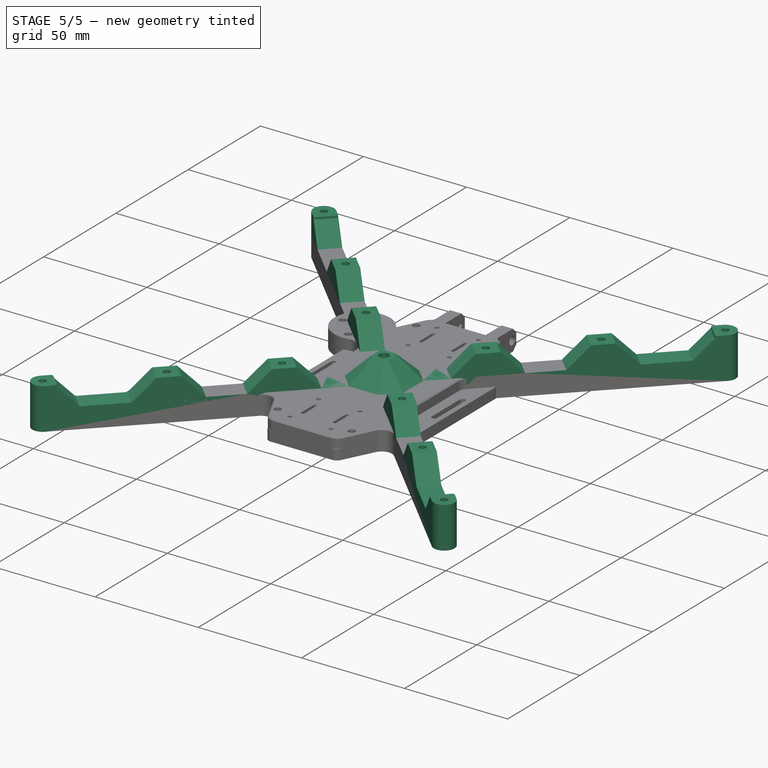
[diagram: stage 5 of 5 — iso view after this stage's code; geometry added in this stage tinted green]
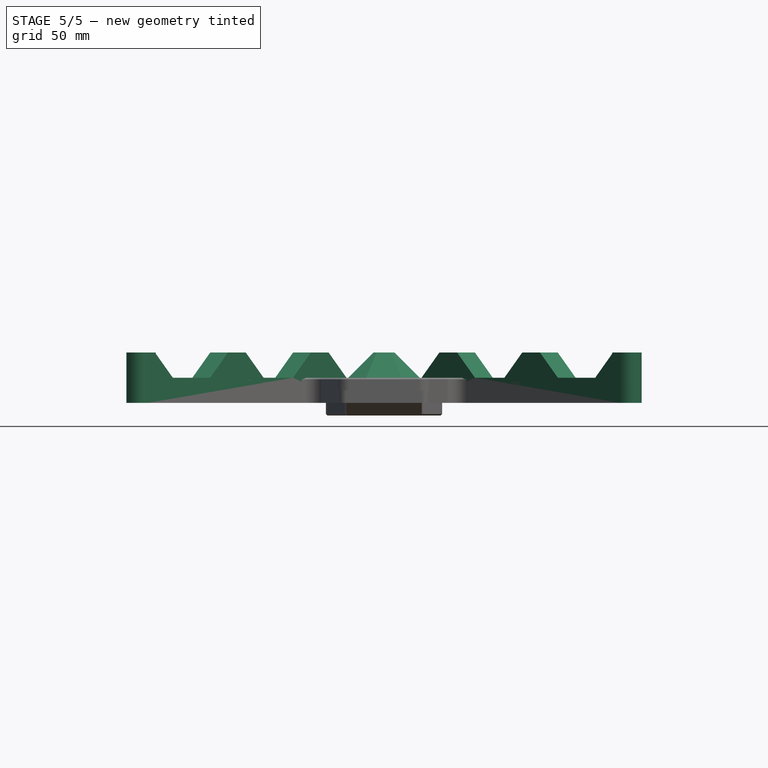
[diagram: stage 5 of 5 — front view after this stage's code; geometry added in this stage tinted green]
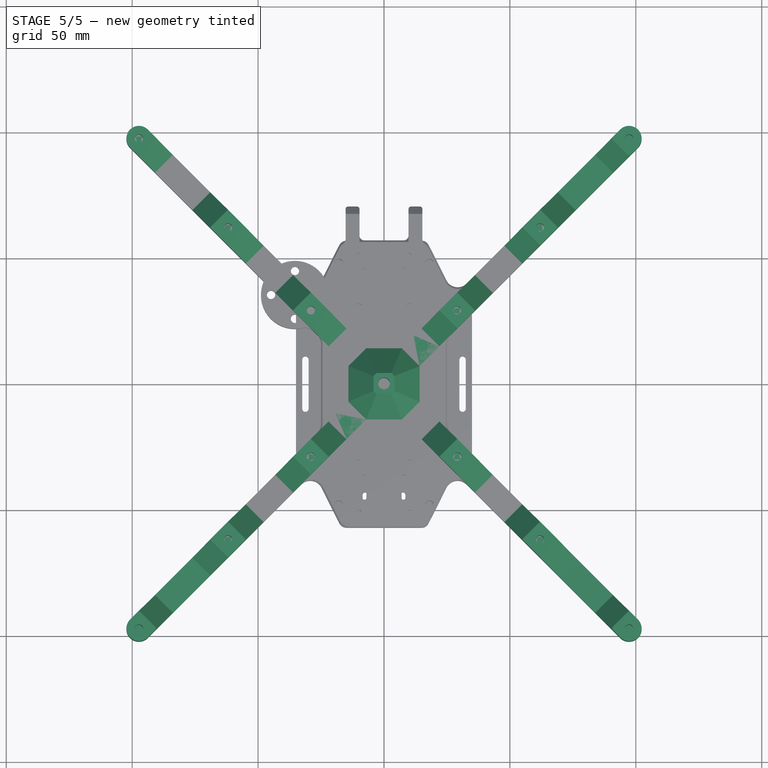
[diagram: stage 5 of 5 — top view after this stage's code; geometry added in this stage tinted green]
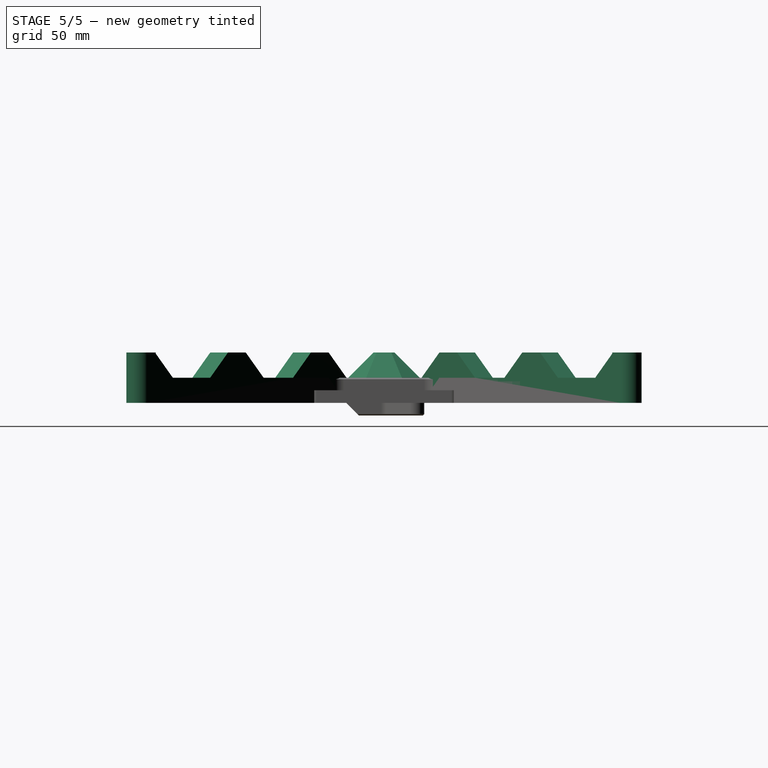
[diagram: stage 5 of 5 — right view after this stage's code; geometry added in this stage tinted green]
FEATURE [Sketcher::SketchObject] Sketch014
  ArcFitTolerance = 1e-06
  AttachmentSupport = -> [Pad002]
  ExternalGeometry = -> [Pad002]
  FullyConstrained = true
  MakeInternals = false
  MapMode = 5
  Placement = pos=(0,0,10) rot=(0,0,1;0rad)
  expr: Constraints[53] = <<Base>>.Constraints.ScewHoleDiameter
  expr: Constraints[60] = <<Base>>.Constraints.ScewHoleDiameter
  sketch-geometry (25):
    g0: LineSegment [constr] StartX=-29.05 StartY=29.05 StartZ=0 EndX=-29.05 EndY=21.9789 EndZ=0
    g1: LineSegment [constr] StartX=-29.05 StartY=29.05 StartZ=0 EndX=-29.05 EndY=36.1211 EndZ=0
    g2: LineSegment [constr] StartX=-29.05 StartY=29.05 StartZ=0 EndX=-36.1211 EndY=29.05 EndZ=0
    g3: LineSegment [constr] StartX=-29.05 StartY=29.05 StartZ=0 EndX=-21.9789 EndY=29.05 EndZ=0
    g4: LineSegment StartX=-36.1211 StartY=29.05 StartZ=0 EndX=-29.05 EndY=36.1211 EndZ=0
    g5: LineSegment StartX=-29.05 StartY=36.1211 StartZ=0 EndX=-21.9789 EndY=29.05 EndZ=0
    g6: LineSegment StartX=-21.9789 StartY=29.05 StartZ=0 EndX=-29.05 EndY=21.9789 EndZ=0
    g7: LineSegment StartX=-29.05 StartY=21.9789 StartZ=0 EndX=-36.1211 EndY=29.05 EndZ=0
    g8: LineSegment [constr] StartX=-69.0249 StartY=61.9539 StartZ=0 EndX=-61.9539 EndY=61.9539 EndZ=0
    g9: LineSegment [constr] StartX=-61.9539 StartY=61.9539 StartZ=0 EndX=-61.9539 EndY=69.0249 EndZ=0
    g10: LineSegment [constr] StartX=-54.8828 StartY=61.9539 StartZ=0 EndX=-61.9539 EndY=61.9539 EndZ=0
    g11: LineSegment [constr] StartX=-61.9539 StartY=61.9539 StartZ=0 EndX=-61.9539 EndY=54.8828 EndZ=0
    g12: LineSegment StartX=-69.0249 StartY=61.9539 StartZ=0 EndX=-61.9539 EndY=69.0249 EndZ=0
    g13: LineSegment StartX=-61.9539 StartY=69.0249 StartZ=0 EndX=-54.8828 EndY=61.9539 EndZ=0
    g14: LineSegment StartX=-54.8828 StartY=61.9539 StartZ=0 EndX=-61.9539 EndY=54.8828 EndZ=0
    g15: LineSegment StartX=-61.9539 StartY=54.8828 StartZ=0 EndX=-69.0249 EndY=61.9539 EndZ=0
    g16: LineSegment [constr] StartX=-97.3092 StartY=90.2381 StartZ=0 EndX=-97.3092 EndY=97.3092 EndZ=0
    g17: LineSegment [constr] StartX=-97.3092 StartY=97.3092 StartZ=0 EndX=-90.2381 EndY=97.3092 EndZ=0
    g18: LineSegment StartX=-100.845 StartY=93.7737 StartZ=0 EndX=-97.3092 EndY=90.2381 EndZ=0
    g19: LineSegment StartX=-97.3092 StartY=90.2381 StartZ=0 EndX=-90.2381 EndY=97.3092 EndZ=0
    g20: LineSegment StartX=-90.2381 StartY=97.3092 StartZ=0 EndX=-93.7737 EndY=100.845 EndZ=0
    g21: Circle CenterX=-97.3092 CenterY=97.3092 CenterZ=0 NormalX=0 NormalY=0 NormalZ=1 AngleXU=0 Radius=1.65
    g22: ArcOfCircle CenterX=-97.3092 CenterY=97.3092 CenterZ=0 NormalX=0 NormalY=0 NormalZ=1 AngleXU=0 Radius=5 StartAngle=0.785396 EndAngle=3.92699
    g23: Circle CenterX=-61.9539 CenterY=61.9539 CenterZ=0 NormalX=0 NormalY=0 NormalZ=1 AngleXU=0 Radius=1.65
    g24: Circle CenterX=-29.05 CenterY=29.05 CenterZ=0 NormalX=0 NormalY=0 NormalZ=1 AngleXU=0 Radius=1.65
  constraints (61):
    c: Coincident(g0,g-3)
    c: PointOnObject(g0,g-7)
    c: Vertical(g0)
    c: Coincident(g1,g0)
    c: PointOnObject(g1,g-6)
    c: Vertical(g1)
    c: Coincident(g2,g0)
    c: PointOnObject(g2,g-7)
    c: Horizontal(g2)
    c: Coincident(g3,g0)
    c: PointOnObject(g3,g-6)
    c: Horizontal(g3)
    c: Coincident(g2,g4)
    c: Coincident(g4,g1)
    c: Coincident(g4,g5)
    c: Coincident(g5,g3)
    c: Coincident(g5,g6)
    c: Coincident(g6,g0)
    c: Coincident(g6,g7)
    c: Coincident(g7,g2)
    c: PointOnObject(g8,g-7)
    c: Coincident(g8,g-4)
    c: Coincident(g8,g9)
    c: PointOnObject(g9,g-6)
    c: Vertical(g9)
    c: PointOnObject(g10,g-6)
    c: Coincident(g10,g8)
    c: Coincident(g10,g11)
    c: PointOnObject(g11,g-7)
    c: Vertical(g11)
    c: Horizontal(g10)
    c: Horizontal(g8)
    c: Coincident(g8,g12)
    c: Coincident(g12,g9)
    c: Coincident(g12,g13)
    c: Coincident(g13,g10)
    c: Coincident(g13,g14)
    c: Coincident(g14,g11)
    c: Coincident(g14,g15)
    c: Coincident(g15,g12)
    c: Coincident(g16,g-5)
    c: Coincident(g16,g17)
    c: PointOnObject(g17,g-6)
    c: Horizontal(g17)
    c: Vertical(g16)
    c: Coincident(g-7,g18) = -1.5708
    c: Coincident(g18,g19)
    c: Coincident(g19,g17)
    c: Coincident(g19,g20)
    c: Coincident(g18,g16)
    c: Coincident(g20,g-6)
    c: PointOnObject(g16,g-7)
    c: Coincident(g21,g16)
    c: Diameter(g21) = 3.3
    c: Coincident(g22,g18)
    c: Coincident(g22,g20)
    c: Diameter(g22) = 10
    c: Coincident(g23,g8)
    c: Coincident(g24,g0)
    c: Equal(g24,g23)
    c: Diameter(g24) = 3.3
FEATURE [PartDesign::Pad] Pad005  label="LegPillars"
  BaseFeature = -> Pad002
  Direction = (0,0,1)
  Length = 10
  Length2 = 10
  Profile = -> Sketch014
  ReferenceAxis = -> Sketch014 [N_Axis]
  Suppressed = false
  Type = 0
FEATURE [PartDesign::Chamfer] Chamfer  label="LegPillarChamfer"
  Angle = 45
  Base = -> Pad005 [Edge29,Edge22,Edge37,Edge31]
  BaseFeature = -> Pad005
  ChamferType = 0
  FlipDirection = false
  Size = 9.99
  Size2 = 1
  SupportTransform = false
  Suppressed = false
  UseAllEdges = false
FEATURE [PartDesign::Chamfer] Chamfer003  label="LegEndChamfer"
  Angle = 45
  Base = -> Chamfer [Edge47]
  BaseFeature = -> Chamfer
  ChamferType = 0
  FlipDirection = false
  Size = 9
  Size2 = 1
  SupportTransform = false
  Suppressed = false
  UseAllEdges = false
FEATURE [PartDesign::Fillet] Fillet  label="LegEndFillet"
  Base = -> Chamfer003 [Edge18,Edge65]
  BaseFeature = -> Chamfer003
  Radius = 0.99
  SupportTransform = false
  Suppressed = false
  UseAllEdges = false
FEATURE [Sketcher::SketchObject] Sketch015
  ArcFitTolerance = 1e-06
  AttachmentSupport = -> [Fillet]
  ExternalGeometry = -> [Fillet]
  FullyConstrained = true
  MakeInternals = false
  MapMode = 5
  Placement = pos=(0,0,0) rot=(1,0,0;3.14159rad)
  expr: Constraints[5] = <<Base>>.Constraints.ScrewCapDiameter
  sketch-geometry (3):
    g0: Circle CenterX=-97.3092 CenterY=-97.3092 CenterZ=0 NormalX=0 NormalY=0 NormalZ=1 AngleXU=0 Radius=2.8
    g1: Circle CenterX=-61.9539 CenterY=-61.9539 CenterZ=0 NormalX=0 NormalY=0 NormalZ=1 AngleXU=0 Radius=2.8
    g2: Circle CenterX=-29.05 CenterY=-29.05 CenterZ=0 NormalX=0 NormalY=0 NormalZ=1 AngleXU=0 Radius=2.8
  constraints (6):
    c: Coincident(g0,g-3)
    c: Coincident(g1,g-4)
    c: Coincident(g2,g-5)
    c: Equal(g2,g1)
    c: Equal(g2,g0)
    c: Diameter(g2) = 5.6
FEATURE [PartDesign::Pocket] Pocket009  label="LegScrewCaps"
  BaseFeature = -> Fillet
  Direction = (0,0,1)
  Length = 5
  Length2 = 5
  Profile = -> Sketch015
  ReferenceAxis = -> Sketch015 [N_Axis]
  Suppressed = false
  Type = 0
FEATURE [Sketcher::SketchObject] Sketch016
  ArcFitTolerance = 1e-06
  AttachmentSupport = -> [Pocket009]
  ExternalGeometry = -> [Pocket009]
  FullyConstrained = true
  MakeInternals = false
  MapMode = 5
  Placement = pos=(0,0,5) rot=(1,0,0;3.14159rad)
  expr: Constraints[5] = <<Base>>.Constraints.ScrewCapDiameter + 0.1 mm
  sketch-geometry (3):
    g0: Circle CenterX=-97.3092 CenterY=-97.3092 CenterZ=0 NormalX=0 NormalY=0 NormalZ=1 AngleXU=0 Radius=2.85
    g1: Circle CenterX=-61.9539 CenterY=-61.9539 CenterZ=0 NormalX=0 NormalY=0 NormalZ=1 AngleXU=0 Radius=2.85
    g2: Circle CenterX=-29.05 CenterY=-29.05 CenterZ=0 NormalX=0 NormalY=0 NormalZ=1 AngleXU=0 Radius=2.85
  constraints (6):
    c: Coincident(g0,g-3)
    c: Coincident(g1,g-4)
    c: Coincident(g2,g-5)
    c: Equal(g2,g1)
    c: Equal(g2,g0)
    c: Diameter(g2) = 5.7
FEATURE [PartDesign::Pad] Pad006  label="LegScrewSacrificials"
  BaseFeature = -> Pocket009
  Direction = (0,0,-1)
  Length = 0.2
  Length2 = 10
  Profile = -> Sketch016
  ReferenceAxis = -> Sketch016 [N_Axis]
  Reversed = true
  Suppressed = false
  Type = 0
FEATURE [PartDesign::PolarPattern] PolarPattern001  label="FourLegs"
  Angle = 360
  Axis = -> Sketch007 [N_Axis]
  BaseFeature = -> Pad006
  Mode = 0
  Occurrences = 4
  Offset = 120
  Originals = -> [Pad002,Pad005,Chamfer,Chamfer003,Fillet,Pocket009,Pad006]
  Suppressed = false
  TransformMode = 0
FEATURE [PartDesign::Fillet] Fillet008  label="LegsInnerFillet"
  Base = -> PolarPattern001 [Edge30,Edge84,Edge276,Edge190]
  BaseFeature = -> PolarPattern001
  Radius = 21
  SupportTransform = false
  Suppressed = false
  UseAllEdges = false
FEATURE [Sketcher::SketchObject] Sketch017
  ArcFitTolerance = 1e-06
  AttachmentSupport = -> [Fillet008]
  FullyConstrained = true
  MakeInternals = false
  MapMode = 5
  Placement = pos=(0,0,10) rot=(0,0,1;0rad)
  sketch-geometry (20):
    g0: LineSegment [constr] StartX=-7.07107 StartY=0 StartZ=0 EndX=9e-16 EndY=7.07107 EndZ=0
    g1: LineSegment [constr] StartX=9e-16 StartY=7.07107 StartZ=0 EndX=7.07107 EndY=0 EndZ=0
    g2: LineSegment [constr] StartX=7.07107 StartY=0 StartZ=0 EndX=-9e-16 EndY=-7.07107 EndZ=0
    g3: LineSegment [constr] StartX=-9e-16 StartY=-7.07107 StartZ=0 EndX=-7.07107 EndY=0 EndZ=0
    g4: LineSegment [constr] StartX=9e-16 StartY=7.07107 StartZ=0 EndX=7.07107 EndY=14.1421 EndZ=0
    g5: LineSegment StartX=7.07107 StartY=14.1421 StartZ=0 EndX=14.1421 EndY=7.07107 EndZ=0
    g6: LineSegment [constr] StartX=14.1421 StartY=7.07107 StartZ=0 EndX=7.07107 EndY=0 EndZ=0
    g7: LineSegment [constr] StartX=7.07107 StartY=0 StartZ=0 EndX=14.1421 EndY=-7.07107 EndZ=0
    g8: LineSegment StartX=14.1421 StartY=-7.07107 StartZ=0 EndX=7.07107 EndY=-14.1421 EndZ=0
    g9: LineSegment [constr] StartX=7.07107 StartY=-14.1421 StartZ=0 EndX=-9e-16 EndY=-7.07107 EndZ=0
    g10: LineSegment [constr] StartX=-9e-16 StartY=-7.07107 StartZ=0 EndX=-7.07107 EndY=-14.1421 EndZ=0
    g11: LineSegment StartX=-7.07107 StartY=-14.1421 StartZ=0 EndX=-14.1421 EndY=-7.07107 EndZ=0
    g12: LineSegment [constr] StartX=-14.1421 StartY=-7.07107 StartZ=0 EndX=-7.07107 EndY=0 EndZ=0
    g13: LineSegment [constr] StartX=-7.07107 StartY=0 StartZ=0 EndX=-14.1421 EndY=7.07107 EndZ=0
    g14: LineSegment StartX=-14.1421 StartY=7.07107 StartZ=0 EndX=-7.07107 EndY=14.1421 EndZ=0
    g15: LineSegment [constr] StartX=-7.07107 StartY=14.1421 StartZ=0 EndX=9e-16 EndY=7.07107 EndZ=0
    g16: LineSegment StartX=-7.07107 StartY=14.1421 StartZ=0 EndX=7.07107 EndY=14.1421 EndZ=0
    g17: LineSegment StartX=14.1421 StartY=7.07107 StartZ=0 EndX=14.1421 EndY=-7.07107 EndZ=0
    g18: LineSegment StartX=7.07107 StartY=-14.1421 StartZ=0 EndX=-7.07107 EndY=-14.1421 EndZ=0
    g19: LineSegment StartX=-14.1421 StartY=-7.07107 StartZ=0 EndX=-14.1421 EndY=7.07107 EndZ=0
  constraints (52):
    c: PointOnObject(g0,g-1)
    c: PointOnObject(g0,g-2)
    c: Coincident(g0,g1)
    c: PointOnObject(g1,g-1)
    c: Coincident(g1,g2)
    c: PointOnObject(g2,g-2)
    c: Coincident(g2,g3)
    c: Coincident(g3,g0)
    c: Perpendicular(g1,g0)
    c: Perpendicular(g2,g3)
    c: Perpendicular(g2,g1)
    c: Distance(g0) = 10
    c: Coincident(g0,g4)
    c: Coincident(g4,g5)
    c: Coincident(g5,g6)
    c: Coincident(g6,g1)
    c: Coincident(g6,g7)
    c: Coincident(g7,g8)
    c: Coincident(g8,g9)
    c: Coincident(g9,g2)
    c: Coincident(g9,g10)
    c: Coincident(g10,g11)
    c: Coincident(g11,g12)
    c: Coincident(g12,g0)
    c: Coincident(g12,g13)
    c: Coincident(g13,g14)
    c: Coincident(g14,g15)
    c: Coincident(g15,g4)
    c: Perpendicular(g4,g15)
    c: Perpendicular(g15,g14)
    c: Perpendicular(g13,g14)
    c: Perpendicular(g12,g13)
    c: Perpendicular(g11,g12)
    c: Perpendicular(g10,g11)
    c: Perpendicular(g9,g10)
    c: Perpendicular(g8,g9)
    c: Perpendicular(g6,g7)
    c: Perpendicular(g8,g7)
    c: Perpendicular(g5,g6)
    c: Angle(g-2,g4) = 2.35619
    c: Equal(g13,g12)
    c: Equal(g10,g9)
    c: Equal(g4,g15)
    c: Distance(g15) = 10
    c: Coincident(g14,g16)
    c: Coincident(g16,g4)
    c: Coincident(g5,g17)
    c: Coincident(g17,g7)
    c: Coincident(g8,g18)
    c: Coincident(g18,g10)
    c: Coincident(g11,g19)
    c: Coincident(g19,g13)
FEATURE [PartDesign::Pad] Pad007  label="CenterPad"
  BaseFeature = -> Fillet008
  Direction = (0,0,1)
  Length = 10
  Length2 = 10
  Profile = -> Sketch017
  ReferenceAxis = -> Sketch017 [N_Axis]
  Suppressed = false
  Type = 0
FEATURE [PartDesign::Chamfer] Chamfer004  label="CenterPadChamfer"
  Angle = 45
  Base = -> Pad007 [Edge246,Edge264,Edge263,Edge262,Edge260,Edge261,Edge122,Edge244]
  BaseFeature = -> Pad007
  ChamferType = 0
  FlipDirection = false
  Size = 9.99
  Size2 = 1
  SupportTransform = false
  Suppressed = false
  UseAllEdges = false
FEATURE [Sketcher::SketchObject] Sketch018
  ArcFitTolerance = 1e-06
  AttachmentSupport = -> [Chamfer004]
  FullyConstrained = true
  MakeInternals = false
  MapMode = 5
  Placement = pos=(0,0,20) rot=(0,0,1;0rad)
  expr: Constraints[1] = <<Base>>.Constraints.HeatSetDiameter
  sketch-geometry (1):
    g0: Circle CenterX=0 CenterY=0 CenterZ=0 NormalX=0 NormalY=0 NormalZ=1 AngleXU=0 Radius=2.35
  constraints (2):
    c: Coincident(g0,g-1)
    c: Diameter(g0) = 4.7
FEATURE [PartDesign::Pocket] Pocket010  label="CenterScrewHole001"
  BaseFeature = -> Chamfer004
  Direction = (0,0,-1)
  Length = 5
  Length2 = 5
  Profile = -> Sketch018
  ReferenceAxis = -> Sketch018 [N_Axis]
  Suppressed = false
  Type = 1
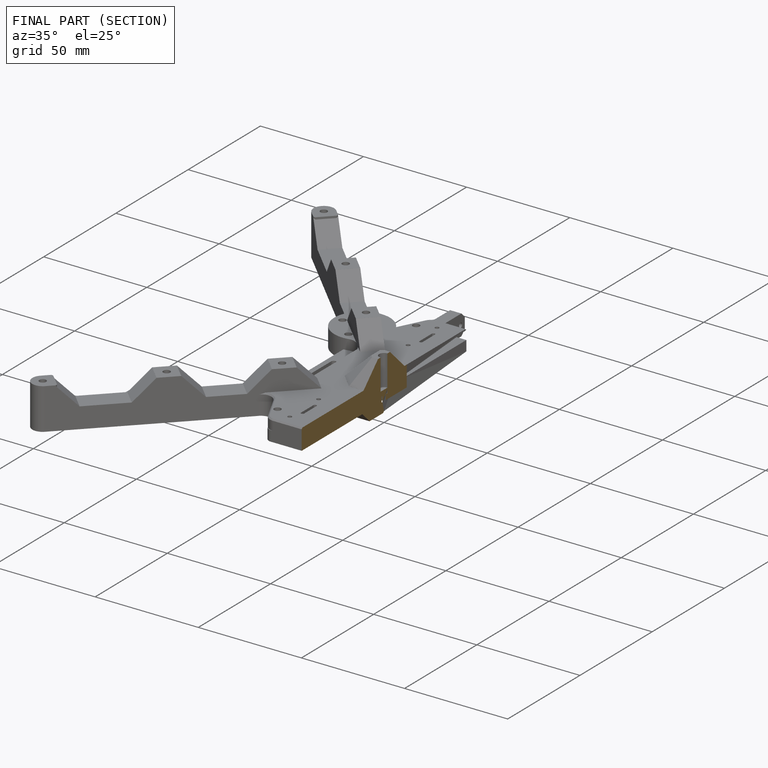
[diagram: finished part — half-section view (interior)]
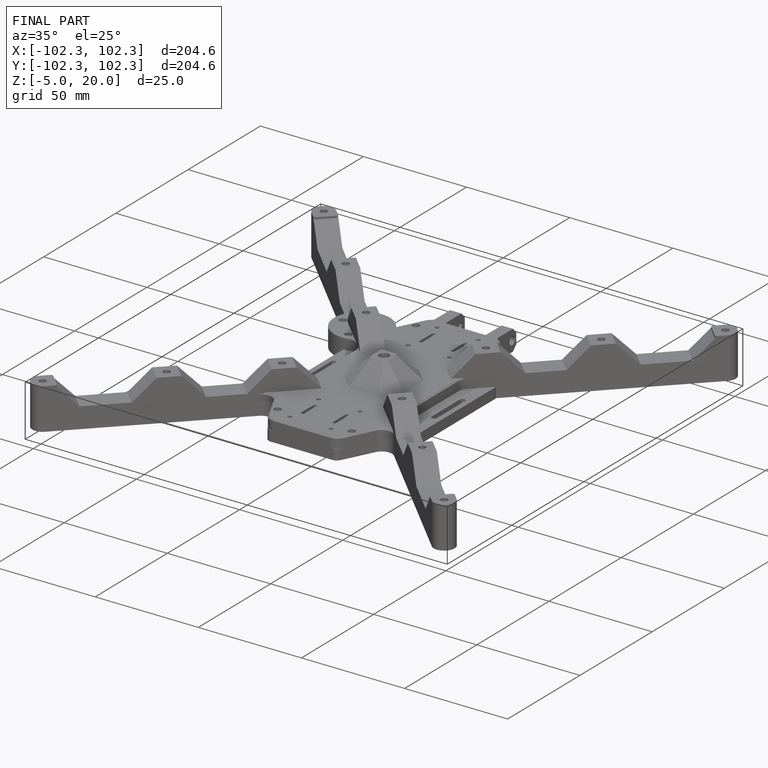
[diagram: finished part — iso view with bounding-box wireframe]
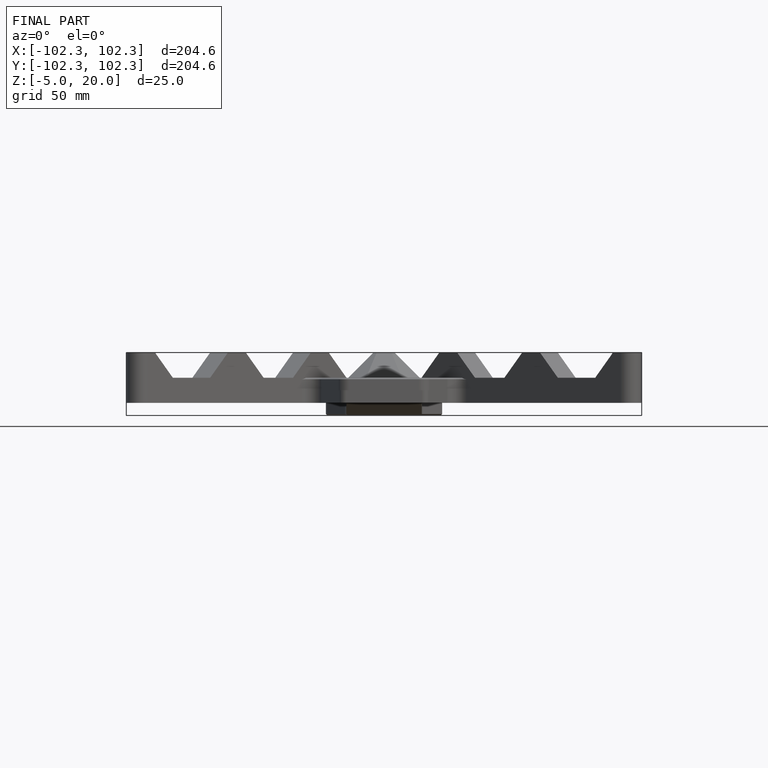
[diagram: finished part — front view with bounding-box wireframe]
